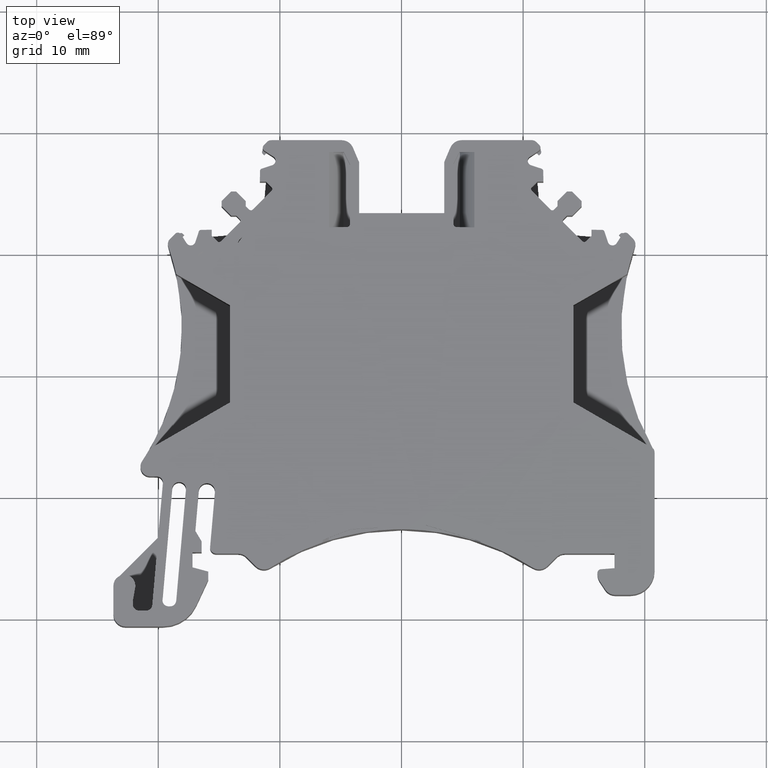
[diagram: clean part render]
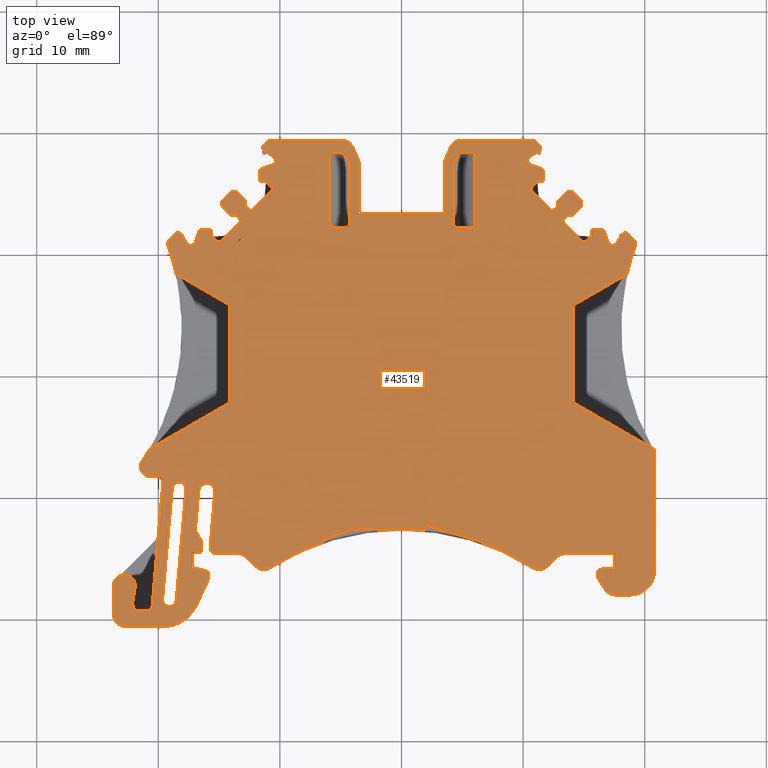
[diagram: same view with one face highlighted and labeled with its STEP entity id]
A machine part, top view. The second image highlights one B-rep face of the part: STEP entity #43519.
In plain terms, the highlighted planar face has unit normal (0, 0, 1).
Its self-contained STEP definition (entity closure, byte-faithful):
#404=CIRCLE('',#43734,0.5);
#405=CIRCLE('',#43741,1.2999966732);
#604=CIRCLE('',#45783,0.200000000126);
#606=CIRCLE('',#45788,1.);
#608=CIRCLE('',#45792,0.2);
#610=CIRCLE('',#45796,0.4000000001);
#611=CIRCLE('',#45799,0.2);
#614=CIRCLE('',#45807,0.2);
#616=CIRCLE('',#45819,0.2);
#618=CIRCLE('',#45824,0.200000000126);
#619=CIRCLE('',#45830,0.2);
#622=CIRCLE('',#45835,0.4000000001);
#628=CIRCLE('',#45849,0.3);
#631=CIRCLE('',#45854,0.5);
#637=CIRCLE('',#45867,1.);
#639=CIRCLE('',#45871,1.);
#641=CIRCLE('',#45877,0.3);
#643=CIRCLE('',#45881,1.);
#645=CIRCLE('',#45885,1.);
#647=CIRCLE('',#45889,2.);
#649=CIRCLE('',#45893,0.6);
#652=CIRCLE('',#45898,0.3);
#656=CIRCLE('',#45904,0.6);
#658=CIRCLE('',#45907,20.);
#667=CIRCLE('',#45933,1.);
#669=CIRCLE('',#45937,0.5);
#670=CIRCLE('',#45940,0.3);
#678=CIRCLE('',#45956,0.4000000001);
#679=CIRCLE('',#45959,0.2);
#682=CIRCLE('',#45967,0.2);
#684=CIRCLE('',#45979,0.2);
#686=CIRCLE('',#45984,0.2);
#687=CIRCLE('',#45990,0.2);
#690=CIRCLE('',#45995,0.4000000001);
#696=CIRCLE('',#46009,0.3);
#699=CIRCLE('',#46014,0.6);
#701=CIRCLE('',#46017,20.);
#702=CIRCLE('',#46018,20.);
#704=CIRCLE('',#46021,0.8);
#706=CIRCLE('',#46025,0.5);
#711=CIRCLE('',#46033,0.3);
#712=CIRCLE('',#46036,0.5);
#713=CIRCLE('',#46039,0.5);
#714=CIRCLE('',#46043,0.9);
#717=CIRCLE('',#46048,1.);
#719=CIRCLE('',#46052,3.);
#721=CIRCLE('',#46063,0.6688487148448);
#723=CIRCLE('',#46067,0.5);
#725=CIRCLE('',#46071,1.);
#727=CIRCLE('',#46075,1.);
#729=CIRCLE('',#46078,20.);
#730=CIRCLE('',#46079,20.);
#731=CIRCLE('',#46080,20.);
#733=CIRCLE('',#46084,0.5686839344726);
#735=CIRCLE('',#46088,0.5);
#737=CIRCLE('',#46092,0.5);
#741=CIRCLE('',#46102,0.3);
#745=CIRCLE('',#46113,0.3);
#12529=ORIENTED_EDGE('',*,*,#19374,.T.);
#12530=ORIENTED_EDGE('',*,*,#13500,.T.);
#12531=ORIENTED_EDGE('',*,*,#19318,.T.);
#12532=ORIENTED_EDGE('',*,*,#13504,.T.);
#12533=ORIENTED_EDGE('',*,*,#19375,.T.);
#12534=ORIENTED_EDGE('',*,*,#13394,.T.);
#12535=ORIENTED_EDGE('',*,*,#19317,.T.);
#12536=ORIENTED_EDGE('',*,*,#18976,.T.);
#12537=ORIENTED_EDGE('',*,*,#18979,.T.);
#12538=ORIENTED_EDGE('',*,*,#18982,.T.);
#12539=ORIENTED_EDGE('',*,*,#18985,.T.);
#12540=ORIENTED_EDGE('',*,*,#18988,.T.);
#12541=ORIENTED_EDGE('',*,*,#18991,.T.);
#12542=ORIENTED_EDGE('',*,*,#18994,.T.);
#12543=ORIENTED_EDGE('',*,*,#18997,.T.);
#12544=ORIENTED_EDGE('',*,*,#19000,.T.);
#12545=ORIENTED_EDGE('',*,*,#19003,.T.);
#12546=ORIENTED_EDGE('',*,*,#19006,.T.);
#12547=ORIENTED_EDGE('',*,*,#19009,.T.);
#12548=ORIENTED_EDGE('',*,*,#19012,.T.);
#12549=ORIENTED_EDGE('',*,*,#19015,.T.);
#12550=ORIENTED_EDGE('',*,*,#19018,.T.);
#12551=ORIENTED_EDGE('',*,*,#13409,.T.);
#12552=ORIENTED_EDGE('',*,*,#19037,.T.);
#12553=ORIENTED_EDGE('',*,*,#13420,.T.);
#12554=ORIENTED_EDGE('',*,*,#19035,.T.);
#12555=ORIENTED_EDGE('',*,*,#19033,.T.);
#12556=ORIENTED_EDGE('',*,*,#19030,.T.);
#12557=ORIENTED_EDGE('',*,*,#19024,.T.);
#12558=ORIENTED_EDGE('',*,*,#19376,.T.);
#12559=ORIENTED_EDGE('',*,*,#18850,.T.);
#12560=ORIENTED_EDGE('',*,*,#18851,.T.);
#12561=ORIENTED_EDGE('',*,*,#18855,.T.);
#12562=ORIENTED_EDGE('',*,*,#18859,.T.);
#12563=ORIENTED_EDGE('',*,*,#18861,.T.);
#12564=ORIENTED_EDGE('',*,*,#18846,.T.);
#12565=ORIENTED_EDGE('',*,*,#18844,.T.);
#12566=ORIENTED_EDGE('',*,*,#18866,.T.);
#12567=ORIENTED_EDGE('',*,*,#18870,.T.);
#12568=ORIENTED_EDGE('',*,*,#18873,.T.);
#12569=ORIENTED_EDGE('',*,*,#18876,.T.);
#12570=ORIENTED_EDGE('',*,*,#18879,.T.);
#12571=ORIENTED_EDGE('',*,*,#18882,.T.);
#12572=ORIENTED_EDGE('',*,*,#18885,.T.);
#12573=ORIENTED_EDGE('',*,*,#18888,.T.);
#12574=ORIENTED_EDGE('',*,*,#18891,.T.);
#12575=ORIENTED_EDGE('',*,*,#18894,.T.);
#12576=ORIENTED_EDGE('',*,*,#18897,.T.);
#12577=ORIENTED_EDGE('',*,*,#18900,.T.);
#12578=ORIENTED_EDGE('',*,*,#18912,.T.);
#12579=ORIENTED_EDGE('',*,*,#18909,.T.);
#12580=ORIENTED_EDGE('',*,*,#18907,.T.);
#12581=ORIENTED_EDGE('',*,*,#18917,.T.);
#12582=ORIENTED_EDGE('',*,*,#18918,.T.);
#12583=ORIENTED_EDGE('',*,*,#18922,.T.);
#12584=ORIENTED_EDGE('',*,*,#18926,.T.);
#12585=ORIENTED_EDGE('',*,*,#18929,.T.);
#12586=ORIENTED_EDGE('',*,*,#18938,.T.);
#12587=ORIENTED_EDGE('',*,*,#18952,.T.);
#12588=ORIENTED_EDGE('',*,*,#18956,.T.);
#12589=ORIENTED_EDGE('',*,*,#18959,.T.);
#12590=ORIENTED_EDGE('',*,*,#18962,.F.);
#12591=ORIENTED_EDGE('',*,*,#18837,.T.);
#12592=ORIENTED_EDGE('',*,*,#18832,.T.);
#12593=ORIENTED_EDGE('',*,*,#13429,.T.);
#12594=ORIENTED_EDGE('',*,*,#19041,.T.);
#12595=ORIENTED_EDGE('',*,*,#13498,.T.);
#12596=ORIENTED_EDGE('',*,*,#19067,.T.);
#12597=ORIENTED_EDGE('',*,*,#19070,.T.);
#12598=ORIENTED_EDGE('',*,*,#19071,.F.);
#12599=ORIENTED_EDGE('',*,*,#19076,.T.);
#12600=ORIENTED_EDGE('',*,*,#19079,.T.);
#12601=ORIENTED_EDGE('',*,*,#19081,.T.);
#12602=ORIENTED_EDGE('',*,*,#19103,.T.);
#12603=ORIENTED_EDGE('',*,*,#19106,.T.);
#12604=ORIENTED_EDGE('',*,*,#19107,.T.);
#12605=ORIENTED_EDGE('',*,*,#19111,.T.);
#12606=ORIENTED_EDGE('',*,*,#19115,.T.);
#12607=ORIENTED_EDGE('',*,*,#19117,.T.);
#12608=ORIENTED_EDGE('',*,*,#18831,.T.);
#12609=ORIENTED_EDGE('',*,*,#18829,.T.);
#12610=ORIENTED_EDGE('',*,*,#19122,.T.);
#12611=ORIENTED_EDGE('',*,*,#19126,.T.);
#12612=ORIENTED_EDGE('',*,*,#19129,.T.);
#12613=ORIENTED_EDGE('',*,*,#19132,.T.);
#12614=ORIENTED_EDGE('',*,*,#19135,.T.);
#12615=ORIENTED_EDGE('',*,*,#19138,.T.);
#12616=ORIENTED_EDGE('',*,*,#19141,.T.);
#12617=ORIENTED_EDGE('',*,*,#19144,.T.);
#12618=ORIENTED_EDGE('',*,*,#19147,.T.);
#12619=ORIENTED_EDGE('',*,*,#19150,.T.);
#12620=ORIENTED_EDGE('',*,*,#19153,.T.);
#12621=ORIENTED_EDGE('',*,*,#19156,.T.);
#12622=ORIENTED_EDGE('',*,*,#19168,.T.);
#12623=ORIENTED_EDGE('',*,*,#19165,.T.);
#12624=ORIENTED_EDGE('',*,*,#19163,.T.);
#12625=ORIENTED_EDGE('',*,*,#19173,.T.);
#12626=ORIENTED_EDGE('',*,*,#19174,.T.);
#12627=ORIENTED_EDGE('',*,*,#19178,.T.);
#12628=ORIENTED_EDGE('',*,*,#19182,.T.);
#12629=ORIENTED_EDGE('',*,*,#19185,.T.);
#12630=ORIENTED_EDGE('',*,*,#19194,.T.);
#12631=ORIENTED_EDGE('',*,*,#19208,.T.);
#12632=ORIENTED_EDGE('',*,*,#19212,.T.);
#12633=ORIENTED_EDGE('',*,*,#19215,.T.);
#12634=ORIENTED_EDGE('',*,*,#19219,.T.);
#12635=ORIENTED_EDGE('',*,*,#13468,.T.);
#12636=ORIENTED_EDGE('',*,*,#19064,.F.);
#12637=ORIENTED_EDGE('',*,*,#19060,.T.);
#12638=ORIENTED_EDGE('',*,*,#19218,.T.);
#12639=ORIENTED_EDGE('',*,*,#19222,.T.);
#12640=ORIENTED_EDGE('',*,*,#19225,.T.);
#12641=ORIENTED_EDGE('',*,*,#19228,.T.);
#12642=ORIENTED_EDGE('',*,*,#19253,.T.);
#12643=ORIENTED_EDGE('',*,*,#19250,.T.);
#12644=ORIENTED_EDGE('',*,*,#19248,.T.);
#12645=ORIENTED_EDGE('',*,*,#19246,.T.);
#12646=ORIENTED_EDGE('',*,*,#19244,.T.);
#12647=ORIENTED_EDGE('',*,*,#19242,.T.);
#12648=ORIENTED_EDGE('',*,*,#19240,.T.);
#12649=ORIENTED_EDGE('',*,*,#19257,.T.);
#12650=ORIENTED_EDGE('',*,*,#19261,.T.);
#12651=ORIENTED_EDGE('',*,*,#19264,.T.);
#12652=ORIENTED_EDGE('',*,*,#19267,.T.);
#12653=ORIENTED_EDGE('',*,*,#19270,.T.);
#12654=ORIENTED_EDGE('',*,*,#19273,.T.);
#12655=ORIENTED_EDGE('',*,*,#19276,.T.);
#12656=ORIENTED_EDGE('',*,*,#19279,.T.);
#12657=ORIENTED_EDGE('',*,*,#19282,.T.);
#12658=ORIENTED_EDGE('',*,*,#19285,.T.);
#12659=ORIENTED_EDGE('',*,*,#19288,.T.);
#12660=ORIENTED_EDGE('',*,*,#19291,.T.);
#12661=ORIENTED_EDGE('',*,*,#19294,.T.);
#12662=ORIENTED_EDGE('',*,*,#19297,.T.);
#12663=ORIENTED_EDGE('',*,*,#19300,.T.);
#12664=ORIENTED_EDGE('',*,*,#19303,.T.);
#12665=ORIENTED_EDGE('',*,*,#19306,.T.);
#12666=ORIENTED_EDGE('',*,*,#19309,.T.);
#12667=ORIENTED_EDGE('',*,*,#19312,.T.);
#12668=ORIENTED_EDGE('',*,*,#19315,.T.);
#12669=ORIENTED_EDGE('',*,*,#19319,.T.);
#12670=ORIENTED_EDGE('',*,*,#13479,.T.);
#12671=ORIENTED_EDGE('',*,*,#19377,.T.);
#12672=ORIENTED_EDGE('',*,*,#19378,.T.);
#12673=ORIENTED_EDGE('',*,*,#13491,.T.);
#12674=ORIENTED_EDGE('',*,*,#13486,.T.);
#12675=ORIENTED_EDGE('',*,*,#19379,.T.);
#12676=ORIENTED_EDGE('',*,*,#13509,.T.);
#12677=ORIENTED_EDGE('',*,*,#19371,.T.);
#12678=ORIENTED_EDGE('',*,*,#19369,.T.);
#12679=ORIENTED_EDGE('',*,*,#19367,.F.);
#12680=ORIENTED_EDGE('',*,*,#19366,.T.);
#12681=ORIENTED_EDGE('',*,*,#19362,.T.);
#12682=ORIENTED_EDGE('',*,*,#19373,.T.);
#12683=ORIENTED_EDGE('',*,*,#19349,.T.);
#12684=ORIENTED_EDGE('',*,*,#19347,.T.);
#12685=ORIENTED_EDGE('',*,*,#19342,.F.);
#12686=ORIENTED_EDGE('',*,*,#19338,.T.);
#12687=ORIENTED_EDGE('',*,*,#19354,.T.);
#12688=ORIENTED_EDGE('',*,*,#19355,.T.);
#12689=ORIENTED_EDGE('',*,*,#19335,.F.);
#12690=ORIENTED_EDGE('',*,*,#19332,.T.);
#12691=ORIENTED_EDGE('',*,*,#19380,.T.);
#12692=ORIENTED_EDGE('',*,*,#19325,.T.);
#12693=ORIENTED_EDGE('',*,*,#19328,.T.);
#12694=ORIENTED_EDGE('',*,*,#19337,.T.);
#13394=EDGE_CURVE('',#19547,#19548,#23668,.T.);
#13409=EDGE_CURVE('',#19562,#19561,#23677,.T.);
#13420=EDGE_CURVE('',#19571,#19570,#23688,.T.);
#13429=EDGE_CURVE('',#19578,#19577,#23697,.T.);
#13468=EDGE_CURVE('',#19611,#19610,#23732,.T.);
#13479=EDGE_CURVE('',#19619,#19618,#23743,.T.);
#13486=EDGE_CURVE('',#19625,#19623,#23748,.T.);
#13491=EDGE_CURVE('',#19627,#19625,#404,.T.);
#13498=EDGE_CURVE('',#19634,#19633,#23758,.T.);
#13500=EDGE_CURVE('',#19635,#19636,#23760,.T.);
#13504=EDGE_CURVE('',#19638,#19637,#23764,.T.);
#13509=EDGE_CURVE('',#19640,#19639,#405,.T.);
#18829=EDGE_CURVE('',#23181,#23182,#604,.T.);
#18831=EDGE_CURVE('',#23183,#23181,#28837,.T.);
#18832=EDGE_CURVE('',#23184,#19578,#28838,.T.);
#18837=EDGE_CURVE('',#23186,#23184,#606,.T.);
#18844=EDGE_CURVE('',#23192,#23193,#608,.T.);
#18846=EDGE_CURVE('',#23194,#23192,#28848,.T.);
#18850=EDGE_CURVE('',#23195,#23198,#610,.T.);
#18851=EDGE_CURVE('',#23198,#23199,#28851,.T.);
#18855=EDGE_CURVE('',#23199,#23201,#611,.T.);
#18859=EDGE_CURVE('',#23201,#23204,#28857,.T.);
#18861=EDGE_CURVE('',#23204,#23194,#28859,.T.);
#18866=EDGE_CURVE('',#23193,#23207,#28864,.T.);
#18870=EDGE_CURVE('',#23207,#23210,#614,.T.);
#18873=EDGE_CURVE('',#23210,#23212,#28869,.T.);
#18876=EDGE_CURVE('',#23212,#23214,#28872,.T.);
#18879=EDGE_CURVE('',#23214,#23216,#28875,.T.);
#18882=EDGE_CURVE('',#23216,#23218,#28878,.T.);
#18885=EDGE_CURVE('',#23218,#23220,#28881,.T.);
#18888=EDGE_CURVE('',#23220,#23222,#28884,.T.);
#18891=EDGE_CURVE('',#23222,#23224,#28887,.T.);
#18894=EDGE_CURVE('',#23224,#23226,#28890,.T.);
#18897=EDGE_CURVE('',#23226,#23228,#28893,.T.);
#18900=EDGE_CURVE('',#23228,#23230,#616,.T.);
#18907=EDGE_CURVE('',#23235,#23236,#28900,.T.);
#18909=EDGE_CURVE('',#23237,#23235,#618,.T.);
#18912=EDGE_CURVE('',#23230,#23237,#28904,.T.);
#18917=EDGE_CURVE('',#23236,#23241,#28909,.T.);
#18918=EDGE_CURVE('',#23241,#23242,#28910,.T.);
#18922=EDGE_CURVE('',#23242,#23244,#619,.T.);
#18926=EDGE_CURVE('',#23244,#23247,#28916,.T.);
#18929=EDGE_CURVE('',#23247,#23249,#622,.T.);
#18938=EDGE_CURVE('',#23249,#23257,#28923,.T.);
#18952=EDGE_CURVE('',#23257,#23265,#628,.T.);
#18956=EDGE_CURVE('',#23265,#23267,#28935,.T.);
#18959=EDGE_CURVE('',#23267,#23269,#631,.T.);
#18962=EDGE_CURVE('',#23186,#23269,#28938,.T.);
#18976=EDGE_CURVE('',#23279,#23281,#637,.T.);
#18979=EDGE_CURVE('',#23281,#23283,#28943,.T.);
#18982=EDGE_CURVE('',#23283,#23285,#639,.T.);
#18985=EDGE_CURVE('',#23285,#23287,#28947,.T.);
#18988=EDGE_CURVE('',#23287,#23289,#28950,.T.);
#18991=EDGE_CURVE('',#23289,#23291,#28952,.T.);
#18994=EDGE_CURVE('',#23291,#23293,#641,.T.);
#18997=EDGE_CURVE('',#23293,#23295,#28956,.T.);
#19000=EDGE_CURVE('',#23295,#23297,#643,.T.);
#19003=EDGE_CURVE('',#23297,#23299,#28960,.T.);
#19006=EDGE_CURVE('',#23299,#23301,#645,.T.);
#19009=EDGE_CURVE('',#23301,#23303,#28964,.T.);
#19012=EDGE_CURVE('',#23303,#23305,#647,.T.);
#19015=EDGE_CURVE('',#23305,#23307,#28968,.T.);
#19018=EDGE_CURVE('',#23307,#19562,#649,.T.);
#19024=EDGE_CURVE('',#23315,#23314,#652,.T.);
#19030=EDGE_CURVE('',#23318,#23315,#28975,.T.);
#19033=EDGE_CURVE('',#23320,#23318,#656,.T.);
#19035=EDGE_CURVE('',#19570,#23320,#658,.T.);
#19037=EDGE_CURVE('',#19561,#19571,#28977,.T.);
#19041=EDGE_CURVE('',#19577,#19634,#28981,.T.);
#19060=EDGE_CURVE('',#23333,#23332,#28985,.T.);
#19064=EDGE_CURVE('',#23333,#19610,#28989,.T.);
#19067=EDGE_CURVE('',#19633,#23336,#28992,.T.);
#19070=EDGE_CURVE('',#23336,#23338,#667,.T.);
#19071=EDGE_CURVE('',#23339,#23338,#28994,.T.);
#19076=EDGE_CURVE('',#23339,#23342,#669,.T.);
#19079=EDGE_CURVE('',#23342,#23344,#29000,.T.);
#19081=EDGE_CURVE('',#23344,#23346,#670,.T.);
#19103=EDGE_CURVE('',#23346,#23360,#29015,.T.);
#19106=EDGE_CURVE('',#23360,#23362,#678,.T.);
#19107=EDGE_CURVE('',#23362,#23363,#29017,.T.);
#19111=EDGE_CURVE('',#23363,#23365,#679,.T.);
#19115=EDGE_CURVE('',#23365,#23368,#29023,.T.);
#19117=EDGE_CURVE('',#23368,#23183,#29025,.T.);
#19122=EDGE_CURVE('',#23182,#23371,#29030,.T.);
#19126=EDGE_CURVE('',#23371,#23374,#682,.T.);
#19129=EDGE_CURVE('',#23374,#23376,#29035,.T.);
#19132=EDGE_CURVE('',#23376,#23378,#29038,.T.);
#19135=EDGE_CURVE('',#23378,#23380,#29041,.T.);
#19138=EDGE_CURVE('',#23380,#23382,#29044,.T.);
#19141=EDGE_CURVE('',#23382,#23384,#29047,.T.);
#19144=EDGE_CURVE('',#23384,#23386,#29050,.T.);
#19147=EDGE_CURVE('',#23386,#23388,#29053,.T.);
#19150=EDGE_CURVE('',#23388,#23390,#29056,.T.);
#19153=EDGE_CURVE('',#23390,#23392,#29059,.T.);
#19156=EDGE_CURVE('',#23392,#23394,#684,.T.);
#19163=EDGE_CURVE('',#23399,#23400,#29066,.T.);
#19165=EDGE_CURVE('',#23401,#23399,#686,.T.);
#19168=EDGE_CURVE('',#23394,#23401,#29070,.T.);
#19173=EDGE_CURVE('',#23400,#23405,#29075,.T.);
#19174=EDGE_CURVE('',#23405,#23406,#29076,.T.);
#19178=EDGE_CURVE('',#23406,#23408,#687,.T.);
#19182=EDGE_CURVE('',#23408,#23411,#29082,.T.);
#19185=EDGE_CURVE('',#23411,#23413,#690,.T.);
#19194=EDGE_CURVE('',#23413,#23421,#29089,.T.);
#19208=EDGE_CURVE('',#23421,#23429,#696,.T.);
#19212=EDGE_CURVE('',#23429,#23431,#29101,.T.);
#19215=EDGE_CURVE('',#23431,#23433,#699,.T.);
#19218=EDGE_CURVE('',#23332,#23435,#701,.T.);
#19219=EDGE_CURVE('',#23433,#19611,#702,.T.);
#19222=EDGE_CURVE('',#23435,#23437,#704,.T.);
#19225=EDGE_CURVE('',#23437,#23439,#29107,.T.);
#19228=EDGE_CURVE('',#23439,#23441,#706,.T.);
#19240=EDGE_CURVE('',#23451,#23452,#29116,.T.);
#19242=EDGE_CURVE('',#23453,#23451,#711,.T.);
#19244=EDGE_CURVE('',#23454,#23453,#29119,.T.);
#19246=EDGE_CURVE('',#23455,#23454,#712,.T.);
#19248=EDGE_CURVE('',#23456,#23455,#29122,.T.);
#19250=EDGE_CURVE('',#23457,#23456,#713,.T.);
#19253=EDGE_CURVE('',#23441,#23457,#29126,.T.);
#19257=EDGE_CURVE('',#23452,#23461,#714,.T.);
#19261=EDGE_CURVE('',#23461,#23463,#29132,.T.);
#19264=EDGE_CURVE('',#23463,#23465,#717,.T.);
#19267=EDGE_CURVE('',#23465,#23467,#29136,.T.);
#19270=EDGE_CURVE('',#23467,#23469,#719,.T.);
#19273=EDGE_CURVE('',#23469,#23471,#29140,.T.);
#19276=EDGE_CURVE('',#23471,#23473,#29143,.T.);
#19279=EDGE_CURVE('',#23473,#23475,#29146,.T.);
#19282=EDGE_CURVE('',#23475,#23477,#29149,.T.);
#19285=EDGE_CURVE('',#23477,#23479,#29152,.T.);
#19288=EDGE_CURVE('',#23479,#23481,#29155,.T.);
#19291=EDGE_CURVE('',#23481,#23483,#29158,.T.);
#19294=EDGE_CURVE('',#23483,#23485,#29161,.T.);
#19297=EDGE_CURVE('',#23485,#23487,#721,.T.);
#19300=EDGE_CURVE('',#23487,#23489,#29165,.T.);
#19303=EDGE_CURVE('',#23489,#23491,#723,.T.);
#19306=EDGE_CURVE('',#23491,#23493,#29169,.T.);
#19309=EDGE_CURVE('',#23493,#23495,#725,.T.);
#19312=EDGE_CURVE('',#23495,#23497,#29173,.T.);
#19315=EDGE_CURVE('',#23497,#23499,#727,.T.);
#19317=EDGE_CURVE('',#19548,#23279,#729,.T.);
#19318=EDGE_CURVE('',#19636,#19638,#730,.T.);
#19319=EDGE_CURVE('',#23499,#19619,#731,.T.);
#19325=EDGE_CURVE('',#23501,#23504,#733,.T.);
#19328=EDGE_CURVE('',#23504,#23506,#29181,.T.);
#19332=EDGE_CURVE('',#23507,#23510,#735,.T.);
#19335=EDGE_CURVE('',#23507,#23512,#29186,.T.);
#19337=EDGE_CURVE('',#23506,#23512,#737,.T.);
#19338=EDGE_CURVE('',#23513,#23514,#29187,.T.);
#19342=EDGE_CURVE('',#23513,#23517,#29190,.T.);
#19347=EDGE_CURVE('',#23520,#23517,#29194,.T.);
#19349=EDGE_CURVE('',#23522,#23520,#29196,.T.);
#19354=EDGE_CURVE('',#23514,#23524,#741,.T.);
#19355=EDGE_CURVE('',#23524,#23522,#29200,.T.);
#19362=EDGE_CURVE('',#23531,#23532,#29206,.T.);
#19366=EDGE_CURVE('',#23533,#23531,#29209,.T.);
#19367=EDGE_CURVE('',#23533,#23534,#29210,.T.);
#19369=EDGE_CURVE('',#23535,#23534,#29211,.T.);
#19371=EDGE_CURVE('',#23536,#23535,#745,.T.);
#19373=EDGE_CURVE('',#23532,#23536,#29214,.T.);
#19374=EDGE_CURVE('',#23537,#19635,#29215,.T.);
#19375=EDGE_CURVE('',#19637,#19547,#29216,.T.);
#19376=EDGE_CURVE('',#23314,#23195,#29217,.T.);
#19377=EDGE_CURVE('',#19618,#23537,#29218,.T.);
#19378=EDGE_CURVE('',#19623,#19627,#29219,.T.);
#19379=EDGE_CURVE('',#19639,#19640,#29220,.T.);
#19380=EDGE_CURVE('',#23510,#23501,#29221,.T.);
#19547=VERTEX_POINT('',#57489);
#19548=VERTEX_POINT('',#57490);
#19561=VERTEX_POINT('',#57526);
#19562=VERTEX_POINT('',#57528);
#19570=VERTEX_POINT('',#57548);
#19571=VERTEX_POINT('',#57550);
#19577=VERTEX_POINT('',#57566);
#19578=VERTEX_POINT('',#57568);
#19610=VERTEX_POINT('',#57653);
#19611=VERTEX_POINT('',#57655);
#19618=VERTEX_POINT('',#57675);
#19619=VERTEX_POINT('',#57677);
#19623=VERTEX_POINT('',#57689);
#19625=VERTEX_POINT('',#57692);
#19627=VERTEX_POINT('',#57698);
#19633=VERTEX_POINT('',#57714);
#19634=VERTEX_POINT('',#57716);
#19635=VERTEX_POINT('',#57720);
#19636=VERTEX_POINT('',#57721);
#19637=VERTEX_POINT('',#57726);
#19638=VERTEX_POINT('',#57728);
#19639=VERTEX_POINT('',#57738);
#19640=VERTEX_POINT('',#57739);
#23181=VERTEX_POINT('',#68651);
#23182=VERTEX_POINT('',#68653);
#23183=VERTEX_POINT('',#68657);
#23184=VERTEX_POINT('',#68661);
#23186=VERTEX_POINT('',#68667);
#23192=VERTEX_POINT('',#68682);
#23193=VERTEX_POINT('',#68684);
#23194=VERTEX_POINT('',#68688);
#23195=VERTEX_POINT('',#68692);
#23198=VERTEX_POINT('',#68697);
#23199=VERTEX_POINT('',#68701);
#23201=VERTEX_POINT('',#68707);
#23204=VERTEX_POINT('',#68715);
#23207=VERTEX_POINT('',#68728);
#23210=VERTEX_POINT('',#68736);
#23212=VERTEX_POINT('',#68742);
#23214=VERTEX_POINT('',#68748);
#23216=VERTEX_POINT('',#68754);
#23218=VERTEX_POINT('',#68760);
#23220=VERTEX_POINT('',#68766);
#23222=VERTEX_POINT('',#68772);
#23224=VERTEX_POINT('',#68778);
#23226=VERTEX_POINT('',#68784);
#23228=VERTEX_POINT('',#68790);
#23230=VERTEX_POINT('',#68796);
#23235=VERTEX_POINT('',#68809);
#23236=VERTEX_POINT('',#68811);
#23237=VERTEX_POINT('',#68815);
#23241=VERTEX_POINT('',#68830);
#23242=VERTEX_POINT('',#68834);
#23244=VERTEX_POINT('',#68840);
#23247=VERTEX_POINT('',#68848);
#23249=VERTEX_POINT('',#68854);
#23257=VERTEX_POINT('',#68873);
#23265=VERTEX_POINT('',#68907);
#23267=VERTEX_POINT('',#68914);
#23269=VERTEX_POINT('',#68920);
#23279=VERTEX_POINT('',#68969);
#23281=VERTEX_POINT('',#68973);
#23283=VERTEX_POINT('',#68979);
#23285=VERTEX_POINT('',#68985);
#23287=VERTEX_POINT('',#68991);
#23289=VERTEX_POINT('',#68997);
#23291=VERTEX_POINT('',#69006);
#23293=VERTEX_POINT('',#69012);
#23295=VERTEX_POINT('',#69018);
#23297=VERTEX_POINT('',#69024);
#23299=VERTEX_POINT('',#69030);
#23301=VERTEX_POINT('',#69036);
#23303=VERTEX_POINT('',#69042);
#23305=VERTEX_POINT('',#69048);
#23307=VERTEX_POINT('',#69054);
#23314=VERTEX_POINT('',#69079);
#23315=VERTEX_POINT('',#69081);
#23318=VERTEX_POINT('',#69089);
#23320=VERTEX_POINT('',#69095);
#23332=VERTEX_POINT('',#69172);
#23333=VERTEX_POINT('',#69174);
#23336=VERTEX_POINT('',#69186);
#23338=VERTEX_POINT('',#69192);
#23339=VERTEX_POINT('',#69196);
#23342=VERTEX_POINT('',#69204);
#23344=VERTEX_POINT('',#69210);
#23346=VERTEX_POINT('',#69215);
#23360=VERTEX_POINT('',#69267);
#23362=VERTEX_POINT('',#69273);
#23363=VERTEX_POINT('',#69277);
#23365=VERTEX_POINT('',#69283);
#23368=VERTEX_POINT('',#69291);
#23371=VERTEX_POINT('',#69304);
#23374=VERTEX_POINT('',#69312);
#23376=VERTEX_POINT('',#69318);
#23378=VERTEX_POINT('',#69324);
#23380=VERTEX_POINT('',#69330);
#23382=VERTEX_POINT('',#69336);
#23384=VERTEX_POINT('',#69342);
#23386=VERTEX_POINT('',#69348);
#23388=VERTEX_POINT('',#69354);
#23390=VERTEX_POINT('',#69360);
#23392=VERTEX_POINT('',#69366);
#23394=VERTEX_POINT('',#69372);
#23399=VERTEX_POINT('',#69385);
#23400=VERTEX_POINT('',#69387);
#23401=VERTEX_POINT('',#69391);
#23405=VERTEX_POINT('',#69406);
#23406=VERTEX_POINT('',#69410);
#23408=VERTEX_POINT('',#69416);
#23411=VERTEX_POINT('',#69424);
#23413=VERTEX_POINT('',#69430);
#23421=VERTEX_POINT('',#69449);
#23429=VERTEX_POINT('',#69483);
#23431=VERTEX_POINT('',#69490);
#23433=VERTEX_POINT('',#69496);
#23435=VERTEX_POINT('',#69502);
#23437=VERTEX_POINT('',#69509);
#23439=VERTEX_POINT('',#69515);
#23441=VERTEX_POINT('',#69521);
#23451=VERTEX_POINT('',#69544);
#23452=VERTEX_POINT('',#69546);
#23453=VERTEX_POINT('',#69550);
#23454=VERTEX_POINT('',#69554);
#23455=VERTEX_POINT('',#69558);
#23456=VERTEX_POINT('',#69562);
#23457=VERTEX_POINT('',#69566);
#23461=VERTEX_POINT('',#69580);
#23463=VERTEX_POINT('',#69587);
#23465=VERTEX_POINT('',#69593);
#23467=VERTEX_POINT('',#69599);
#23469=VERTEX_POINT('',#69605);
#23471=VERTEX_POINT('',#69611);
#23473=VERTEX_POINT('',#69617);
#23475=VERTEX_POINT('',#69623);
#23477=VERTEX_POINT('',#69629);
#23479=VERTEX_POINT('',#69635);
#23481=VERTEX_POINT('',#69641);
#23483=VERTEX_POINT('',#69647);
#23485=VERTEX_POINT('',#69653);
#23487=VERTEX_POINT('',#69659);
#23489=VERTEX_POINT('',#69665);
#23491=VERTEX_POINT('',#69671);
#23493=VERTEX_POINT('',#69677);
#23495=VERTEX_POINT('',#69683);
#23497=VERTEX_POINT('',#69689);
#23499=VERTEX_POINT('',#69695);
#23501=VERTEX_POINT('',#69708);
#23504=VERTEX_POINT('',#69713);
#23506=VERTEX_POINT('',#69719);
#23507=VERTEX_POINT('',#69723);
#23510=VERTEX_POINT('',#69728);
#23512=VERTEX_POINT('',#69733);
#23513=VERTEX_POINT('',#69741);
#23514=VERTEX_POINT('',#69742);
#23517=VERTEX_POINT('',#69750);
#23520=VERTEX_POINT('',#69757);
#23522=VERTEX_POINT('',#69764);
#23524=VERTEX_POINT('',#69772);
#23531=VERTEX_POINT('',#69791);
#23532=VERTEX_POINT('',#69792);
#23533=VERTEX_POINT('',#69797);
#23534=VERTEX_POINT('',#69801);
#23535=VERTEX_POINT('',#69805);
#23536=VERTEX_POINT('',#69809);
#23537=VERTEX_POINT('',#69815);
#23668=LINE('',#57488,#29362);
#23677=LINE('',#57527,#29371);
#23688=LINE('',#57549,#29382);
#23697=LINE('',#57567,#29391);
#23732=LINE('',#57654,#29426);
#23743=LINE('',#57676,#29437);
#23748=LINE('',#57691,#29442);
#23758=LINE('',#57715,#29452);
#23760=LINE('',#57719,#29454);
#23764=LINE('',#57727,#29458);
#28837=LINE('',#68658,#34531);
#28838=LINE('',#68660,#34532);
#28848=LINE('',#68689,#34542);
#28851=LINE('',#68700,#34545);
#28857=LINE('',#68716,#34551);
#28859=LINE('',#68720,#34553);
#28864=LINE('',#68730,#34558);
#28869=LINE('',#68743,#34563);
#28872=LINE('',#68749,#34566);
#28875=LINE('',#68755,#34569);
#28878=LINE('',#68761,#34572);
#28881=LINE('',#68767,#34575);
#28884=LINE('',#68773,#34578);
#28887=LINE('',#68779,#34581);
#28890=LINE('',#68785,#34584);
#28893=LINE('',#68791,#34587);
#28900=LINE('',#68812,#34594);
#28904=LINE('',#68821,#34598);
#28909=LINE('',#68831,#34603);
#28910=LINE('',#68833,#34604);
#28916=LINE('',#68849,#34610);
#28923=LINE('',#68874,#34617);
#28935=LINE('',#68915,#34629);
#28938=LINE('',#68926,#34632);
#28943=LINE('',#68980,#34637);
#28947=LINE('',#68992,#34641);
#28950=LINE('',#68998,#34644);
#28952=LINE('',#69007,#34646);
#28956=LINE('',#69019,#34650);
#28960=LINE('',#69031,#34654);
#28964=LINE('',#69043,#34658);
#28968=LINE('',#69055,#34662);
#28975=LINE('',#69091,#34669);
#28977=LINE('',#69104,#34671);
#28981=LINE('',#69110,#34675);
#28985=LINE('',#69173,#34679);
#28989=LINE('',#69181,#34683);
#28992=LINE('',#69187,#34686);
#28994=LINE('',#69195,#34688);
#29000=LINE('',#69211,#34694);
#29015=LINE('',#69268,#34709);
#29017=LINE('',#69276,#34711);
#29023=LINE('',#69292,#34717);
#29025=LINE('',#69296,#34719);
#29030=LINE('',#69306,#34724);
#29035=LINE('',#69319,#34729);
#29038=LINE('',#69325,#34732);
#29041=LINE('',#69331,#34735);
#29044=LINE('',#69337,#34738);
#29047=LINE('',#69343,#34741);
#29050=LINE('',#69349,#34744);
#29053=LINE('',#69355,#34747);
#29056=LINE('',#69361,#34750);
#29059=LINE('',#69367,#34753);
#29066=LINE('',#69388,#34760);
#29070=LINE('',#69397,#34764);
#29075=LINE('',#69407,#34769);
#29076=LINE('',#69409,#34770);
#29082=LINE('',#69425,#34776);
#29089=LINE('',#69450,#34783);
#29101=LINE('',#69491,#34795);
#29107=LINE('',#69516,#34801);
#29116=LINE('',#69547,#34810);
#29119=LINE('',#69555,#34813);
#29122=LINE('',#69563,#34816);
#29126=LINE('',#69572,#34820);
#29132=LINE('',#69588,#34826);
#29136=LINE('',#69600,#34830);
#29140=LINE('',#69612,#34834);
#29143=LINE('',#69618,#34837);
#29146=LINE('',#69624,#34840);
#29149=LINE('',#69630,#34843);
#29152=LINE('',#69636,#34846);
#29155=LINE('',#69642,#34849);
#29158=LINE('',#69648,#34852);
#29161=LINE('',#69654,#34855);
#29165=LINE('',#69666,#34859);
#29169=LINE('',#69678,#34863);
#29173=LINE('',#69690,#34867);
#29181=LINE('',#69720,#34875);
#29186=LINE('',#69735,#34880);
#29187=LINE('',#69740,#34881);
#29190=LINE('',#69749,#34884);
#29194=LINE('',#69759,#34888);
#29196=LINE('',#69763,#34890);
#29200=LINE('',#69775,#34894);
#29206=LINE('',#69790,#34900);
#29209=LINE('',#69798,#34903);
#29210=LINE('',#69800,#34904);
#29211=LINE('',#69804,#34905);
#29214=LINE('',#69812,#34908);
#29215=LINE('',#69814,#34909);
#29216=LINE('',#69816,#34910);
#29217=LINE('',#69817,#34911);
#29218=LINE('',#69818,#34912);
#29219=LINE('',#69819,#34913);
#29220=LINE('',#69820,#34914);
#29221=LINE('',#69821,#34915);
#29362=VECTOR('',#46550,1000.);
#29371=VECTOR('',#46573,1000.);
#29382=VECTOR('',#46588,1000.);
#29391=VECTOR('',#46601,1000.);
#29426=VECTOR('',#46658,1000.);
#29437=VECTOR('',#46675,1000.);
#29442=VECTOR('',#46688,1000.);
#29452=VECTOR('',#46708,1000.);
#29454=VECTOR('',#46712,1000.);
#29458=VECTOR('',#46718,1000.);
#34531=VECTOR('',#55883,1000.);
#34532=VECTOR('',#55886,1000.);
#34542=VECTOR('',#55912,1000.);
#34545=VECTOR('',#55923,1000.);
#34551=VECTOR('',#55937,1000.);
#34553=VECTOR('',#55941,1000.);
#34558=VECTOR('',#55950,1000.);
#34563=VECTOR('',#55963,1000.);
#34566=VECTOR('',#55968,1000.);
#34569=VECTOR('',#55973,1000.);
#34572=VECTOR('',#55978,1000.);
#34575=VECTOR('',#55983,1000.);
#34578=VECTOR('',#55988,1000.);
#34581=VECTOR('',#55993,1000.);
#34584=VECTOR('',#55998,1000.);
#34587=VECTOR('',#56003,1000.);
#34594=VECTOR('',#56022,1000.);
#34598=VECTOR('',#56032,1000.);
#34603=VECTOR('',#56041,1000.);
#34604=VECTOR('',#56044,1000.);
#34610=VECTOR('',#56058,1000.);
#34617=VECTOR('',#56081,1000.);
#34629=VECTOR('',#56115,1000.);
#34632=VECTOR('',#56128,1000.);
#34637=VECTOR('',#56157,1000.);
#34641=VECTOR('',#56169,1000.);
#34644=VECTOR('',#56174,1000.);
#34646=VECTOR('',#56178,1000.);
#34650=VECTOR('',#56190,1000.);
#34654=VECTOR('',#56202,1000.);
#34658=VECTOR('',#56214,1000.);
#34662=VECTOR('',#56226,1000.);
#34669=VECTOR('',#56255,1000.);
#34671=VECTOR('',#56275,1000.);
#34675=VECTOR('',#56283,1000.);
#34679=VECTOR('',#56317,1000.);
#34683=VECTOR('',#56325,1000.);
#34686=VECTOR('',#56330,1000.);
#34688=VECTOR('',#56340,1000.);
#34694=VECTOR('',#56354,1000.);
#34709=VECTOR('',#56399,1000.);
#34711=VECTOR('',#56409,1000.);
#34717=VECTOR('',#56423,1000.);
#34719=VECTOR('',#56427,1000.);
#34724=VECTOR('',#56436,1000.);
#34729=VECTOR('',#56449,1000.);
#34732=VECTOR('',#56454,1000.);
#34735=VECTOR('',#56459,1000.);
#34738=VECTOR('',#56464,1000.);
#34741=VECTOR('',#56469,1000.);
#34744=VECTOR('',#56474,1000.);
#34747=VECTOR('',#56479,1000.);
#34750=VECTOR('',#56484,1000.);
#34753=VECTOR('',#56489,1000.);
#34760=VECTOR('',#56508,1000.);
#34764=VECTOR('',#56518,1000.);
#34769=VECTOR('',#56527,1000.);
#34770=VECTOR('',#56530,1000.);
#34776=VECTOR('',#56544,1000.);
#34783=VECTOR('',#56567,1000.);
#34795=VECTOR('',#56601,1000.);
#34801=VECTOR('',#56629,1000.);
#34810=VECTOR('',#56656,1000.);
#34813=VECTOR('',#56665,1000.);
#34816=VECTOR('',#56674,1000.);
#34820=VECTOR('',#56684,1000.);
#34826=VECTOR('',#56700,1000.);
#34830=VECTOR('',#56712,1000.);
#34834=VECTOR('',#56724,1000.);
#34837=VECTOR('',#56729,1000.);
#34840=VECTOR('',#56734,1000.);
#34843=VECTOR('',#56739,1000.);
#34846=VECTOR('',#56744,1000.);
#34849=VECTOR('',#56749,1000.);
#34852=VECTOR('',#56754,1000.);
#34855=VECTOR('',#56759,1000.);
#34859=VECTOR('',#56771,1000.);
#34863=VECTOR('',#56783,1000.);
#34867=VECTOR('',#56795,1000.);
#34875=VECTOR('',#56829,1000.);
#34880=VECTOR('',#56842,1000.);
#34881=VECTOR('',#56851,1000.);
#34884=VECTOR('',#56858,1000.);
#34888=VECTOR('',#56866,1000.);
#34890=VECTOR('',#56870,1000.);
#34894=VECTOR('',#56884,1000.);
#34900=VECTOR('',#56896,1000.);
#34903=VECTOR('',#56903,1000.);
#34904=VECTOR('',#56906,1000.);
#34905=VECTOR('',#56911,1000.);
#34908=VECTOR('',#56920,1000.);
#34909=VECTOR('',#56923,1000.);
#34910=VECTOR('',#56924,1000.);
#34911=VECTOR('',#56925,1000.);
#34912=VECTOR('',#56926,1000.);
#34913=VECTOR('',#56927,1000.);
#34914=VECTOR('',#56928,1000.);
#34915=VECTOR('',#56929,1000.);
#37130=EDGE_LOOP('',(#12529,#12530,#12531,#12532,#12533,#12534,#12535,#12536,
#12537,#12538,#12539,#12540,#12541,#12542,#12543,#12544,#12545,#12546,#12547,
#12548,#12549,#12550,#12551,#12552,#12553,#12554,#12555,#12556,#12557,#12558,
#12559,#12560,#12561,#12562,#12563,#12564,#12565,#12566,#12567,#12568,#12569,
#12570,#12571,#12572,#12573,#12574,#12575,#12576,#12577,#12578,#12579,#12580,
#12581,#12582,#12583,#12584,#12585,#12586,#12587,#12588,#12589,#12590,#12591,
#12592,#12593,#12594,#12595,#12596,#12597,#12598,#12599,#12600,#12601,#12602,
#12603,#12604,#12605,#12606,#12607,#12608,#12609,#12610,#12611,#12612,#12613,
#12614,#12615,#12616,#12617,#12618,#12619,#12620,#12621,#12622,#12623,#12624,
#12625,#12626,#12627,#12628,#12629,#12630,#12631,#12632,#12633,#12634,#12635,
#12636,#12637,#12638,#12639,#12640,#12641,#12642,#12643,#12644,#12645,#12646,
#12647,#12648,#12649,#12650,#12651,#12652,#12653,#12654,#12655,#12656,#12657,
#12658,#12659,#12660,#12661,#12662,#12663,#12664,#12665,#12666,#12667,#12668,
#12669,#12670,#12671));
#37131=EDGE_LOOP('',(#12672,#12673,#12674));
#37132=EDGE_LOOP('',(#12675,#12676));
#37133=EDGE_LOOP('',(#12677,#12678,#12679,#12680,#12681,#12682));
#37134=EDGE_LOOP('',(#12683,#12684,#12685,#12686,#12687,#12688));
#37135=EDGE_LOOP('',(#12689,#12690,#12691,#12692,#12693,#12694));
#39386=FACE_BOUND('',#37130,.T.);
#39387=FACE_BOUND('',#37131,.T.);
#39388=FACE_BOUND('',#37132,.T.);
#39389=FACE_BOUND('',#37133,.T.);
#39390=FACE_BOUND('',#37134,.T.);
#39391=FACE_BOUND('',#37135,.T.);
#41356=PLANE('',#46115);
#43519=ADVANCED_FACE('',(#39386,#39387,#39388,#39389,#39390,#39391),#41356,
 .T.);
#43734=AXIS2_PLACEMENT_3D('',#57701,#46696,#46697);
#43741=AXIS2_PLACEMENT_3D('',#57740,#46726,#46727);
#45783=AXIS2_PLACEMENT_3D('',#68654,#55878,#55879);
#45788=AXIS2_PLACEMENT_3D('',#68670,#55894,#55895);
#45792=AXIS2_PLACEMENT_3D('',#68685,#55907,#55908);
#45796=AXIS2_PLACEMENT_3D('',#68698,#55919,#55920);
#45799=AXIS2_PLACEMENT_3D('',#68709,#55929,#55930);
#45807=AXIS2_PLACEMENT_3D('',#68737,#55957,#55958);
#45819=AXIS2_PLACEMENT_3D('',#68797,#56009,#56010);
#45824=AXIS2_PLACEMENT_3D('',#68816,#56026,#56027);
#45830=AXIS2_PLACEMENT_3D('',#68842,#56050,#56051);
#45835=AXIS2_PLACEMENT_3D('',#68855,#56064,#56065);
#45849=AXIS2_PLACEMENT_3D('',#68908,#56107,#56108);
#45854=AXIS2_PLACEMENT_3D('',#68921,#56121,#56122);
#45867=AXIS2_PLACEMENT_3D('',#68974,#56151,#56152);
#45871=AXIS2_PLACEMENT_3D('',#68986,#56163,#56164);
#45877=AXIS2_PLACEMENT_3D('',#69013,#56184,#56185);
#45881=AXIS2_PLACEMENT_3D('',#69025,#56196,#56197);
#45885=AXIS2_PLACEMENT_3D('',#69037,#56208,#56209);
#45889=AXIS2_PLACEMENT_3D('',#69049,#56220,#56221);
#45893=AXIS2_PLACEMENT_3D('',#69060,#56232,#56233);
#45898=AXIS2_PLACEMENT_3D('',#69080,#56244,#56245);
#45904=AXIS2_PLACEMENT_3D('',#69097,#56261,#56262);
#45907=AXIS2_PLACEMENT_3D('',#69100,#56267,#56268);
#45933=AXIS2_PLACEMENT_3D('',#69193,#56336,#56337);
#45937=AXIS2_PLACEMENT_3D('',#69205,#56348,#56349);
#45940=AXIS2_PLACEMENT_3D('',#69216,#56358,#56359);
#45956=AXIS2_PLACEMENT_3D('',#69274,#56405,#56406);
#45959=AXIS2_PLACEMENT_3D('',#69285,#56415,#56416);
#45967=AXIS2_PLACEMENT_3D('',#69313,#56443,#56444);
#45979=AXIS2_PLACEMENT_3D('',#69373,#56495,#56496);
#45984=AXIS2_PLACEMENT_3D('',#69392,#56512,#56513);
#45990=AXIS2_PLACEMENT_3D('',#69418,#56536,#56537);
#45995=AXIS2_PLACEMENT_3D('',#69431,#56550,#56551);
#46009=AXIS2_PLACEMENT_3D('',#69484,#56593,#56594);
#46014=AXIS2_PLACEMENT_3D('',#69497,#56607,#56608);
#46017=AXIS2_PLACEMENT_3D('',#69503,#56614,#56615);
#46018=AXIS2_PLACEMENT_3D('',#69504,#56616,#56617);
#46021=AXIS2_PLACEMENT_3D('',#69510,#56623,#56624);
#46025=AXIS2_PLACEMENT_3D('',#69522,#56635,#56636);
#46033=AXIS2_PLACEMENT_3D('',#69551,#56660,#56661);
#46036=AXIS2_PLACEMENT_3D('',#69559,#56669,#56670);
#46039=AXIS2_PLACEMENT_3D('',#69567,#56678,#56679);
#46043=AXIS2_PLACEMENT_3D('',#69581,#56692,#56693);
#46048=AXIS2_PLACEMENT_3D('',#69594,#56706,#56707);
#46052=AXIS2_PLACEMENT_3D('',#69606,#56718,#56719);
#46063=AXIS2_PLACEMENT_3D('',#69660,#56765,#56766);
#46067=AXIS2_PLACEMENT_3D('',#69672,#56777,#56778);
#46071=AXIS2_PLACEMENT_3D('',#69684,#56789,#56790);
#46075=AXIS2_PLACEMENT_3D('',#69696,#56801,#56802);
#46078=AXIS2_PLACEMENT_3D('',#69699,#56807,#56808);
#46079=AXIS2_PLACEMENT_3D('',#69700,#56809,#56810);
#46080=AXIS2_PLACEMENT_3D('',#69701,#56811,#56812);
#46084=AXIS2_PLACEMENT_3D('',#69714,#56823,#56824);
#46088=AXIS2_PLACEMENT_3D('',#69729,#56836,#56837);
#46092=AXIS2_PLACEMENT_3D('',#69738,#56847,#56848);
#46102=AXIS2_PLACEMENT_3D('',#69773,#56880,#56881);
#46113=AXIS2_PLACEMENT_3D('',#69808,#56915,#56916);
#46115=AXIS2_PLACEMENT_3D('',#69813,#56921,#56922);
#46550=DIRECTION('',(-1.010781854758E-14,-1.,0.));
#46573=DIRECTION('',(-0.866025345749701,0.500000100519101,0.));
#46588=DIRECTION('',(0.866025403784386,0.500000000000092,0.));
#46601=DIRECTION('',(-2.155022129216E-13,-1.,0.));
#46658=DIRECTION('',(0.866025403784026,-0.500000000000715,0.));
#46675=DIRECTION('',(-6.235604611103E-14,1.,0.));
#46688=DIRECTION('',(0.707106781207498,0.707106781165598,0.));
#46696=DIRECTION('',(0.,0.,-1.));
#46697=DIRECTION('',(-0.844498965001488,-0.535557184725792,0.));
#46708=DIRECTION('',(-3.205555744488E-14,1.,0.));
#46712=DIRECTION('',(-9.109128694142E-14,-1.,0.));
#46718=DIRECTION('',(8.890310587936E-14,1.,0.));
#46726=DIRECTION('',(0.,0.,-1.));
#46727=DIRECTION('',(9.97911780438105E-6,-0.999999999950209,0.));
#55878=DIRECTION('',(0.,0.,-1.));
#55879=DIRECTION('',(0.707106781201898,0.707106781171198,0.));
#55883=DIRECTION('',(0.707106781116198,-0.707106781256898,0.));
#55886=DIRECTION('',(-0.390947126695192,-0.92041313774238,0.));
#55894=DIRECTION('',(0.,0.,1.));
#55895=DIRECTION('',(1.932027871021E-10,1.,0.));
#55907=DIRECTION('',(0.,0.,-1.));
#55908=DIRECTION('',(0.707106781198798,-0.707106781174298,0.));
#55912=DIRECTION('',(-0.707106781117397,-0.707106781255697,0.));
#55919=DIRECTION('',(0.,0.,-1.));
#55920=DIRECTION('',(0.840546254127626,-0.541739785018617,0.));
#55923=DIRECTION('',(-0.312299297384206,0.949983762415617,0.));
#55929=DIRECTION('',(0.,0.,1.));
#55930=DIRECTION('',(0.949983762417069,0.31229929737979,0.));
#55937=DIRECTION('',(-0.999909593712124,0.0134463527566103,0.));
#55941=DIRECTION('',(1.510123904236E-10,-1.,0.));
#55950=DIRECTION('',(-0.707106781206597,0.707106781166498,0.));
#55957=DIRECTION('',(0.,0.,-1.));
#55958=DIRECTION('',(-0.707106780566698,-0.707106781806398,0.));
#55963=DIRECTION('',(0.707106781205598,0.707106781167498,0.));
#55968=DIRECTION('',(1.,-1.063559689736E-10,0.));
#55973=DIRECTION('',(0.707106781315098,0.707106781057998,0.));
#55978=DIRECTION('',(-2.069616322944E-9,1.,0.));
#55983=DIRECTION('',(-0.707106781001998,0.707106781371098,0.));
#55988=DIRECTION('',(-1.,2.94758691476E-12,0.));
#55993=DIRECTION('',(-0.707106781063097,-0.707106781309997,0.));
#55998=DIRECTION('',(-1.854932354194E-9,-1.,0.));
#56003=DIRECTION('',(-0.707106780925398,-0.707106781447698,0.));
#56009=DIRECTION('',(0.,0.,-1.));
#56010=DIRECTION('',(0.707106785627898,-0.707106776745198,0.));
#56022=DIRECTION('',(0.707106781094898,0.707106781278198,0.));
#56026=DIRECTION('',(0.,0.,-1.));
#56027=DIRECTION('',(-0.707106782155198,-0.707106780217898,0.));
#56032=DIRECTION('',(-0.707106781186398,0.707106781186698,0.));
#56041=DIRECTION('',(1.,-4.082635155635E-9,0.));
#56044=DIRECTION('',(-0.0134843619855896,0.999909081857867,0.));
#56050=DIRECTION('',(0.,0.,1.));
#56051=DIRECTION('',(0.999909081857866,0.0134843619855995,0.));
#56058=DIRECTION('',(-0.949983762660627,0.312299296638909,0.));
#56064=DIRECTION('',(0.,0.,-1.));
#56065=DIRECTION('',(-0.312817868198508,-0.949813129692226,0.));
#56081=DIRECTION('',(0.840546256343712,0.541739781580208,0.));
#56107=DIRECTION('',(0.,0.,1.));
#56108=DIRECTION('',(0.541739782318792,-0.840546255867687,0.));
#56115=DIRECTION('',(-0.707106781271297,0.707106781101797,0.));
#56121=DIRECTION('',(0.,0.,1.));
#56122=DIRECTION('',(0.707106781180698,0.707106781192398,0.));
#56128=DIRECTION('',(1.,6.258217414171E-13,0.));
#56151=DIRECTION('',(0.,0.,1.));
#56152=DIRECTION('',(-0.538692572224018,-0.842502411053328,0.));
#56157=DIRECTION('',(0.707106781184498,0.707106781188598,0.));
#56163=DIRECTION('',(0.,0.,-1.));
#56164=DIRECTION('',(-0.707106781179297,0.707106781193797,0.));
#56169=DIRECTION('',(1.,0.,0.));
#56174=DIRECTION('',(0.,-1.,0.));
#56178=DIRECTION('',(-0.996894445471419,-0.0787493783355215,0.));
#56184=DIRECTION('',(0.,0.,1.));
#56185=DIRECTION('',(-0.1391731015305,0.990268068661401,0.));
#56190=DIRECTION('',(0.,-1.,0.));
#56196=DIRECTION('',(0.,0.,1.));
#56197=DIRECTION('',(-1.,0.,0.));
#56202=DIRECTION('',(0.548375212153103,-0.836232399932004,0.));
#56208=DIRECTION('',(0.,0.,1.));
#56209=DIRECTION('',(-0.836232399908323,-0.548375212189215,0.));
#56214=DIRECTION('',(1.,0.,0.));
#56220=DIRECTION('',(0.,0.,1.));
#56221=DIRECTION('',(4.998668146072E-12,-1.,0.));
#56226=DIRECTION('',(0.,1.,0.));
#56232=DIRECTION('',(0.,0.,1.));
#56233=DIRECTION('',(1.,1.666666804567E-11,0.));
#56244=DIRECTION('',(0.,0.,1.));
#56245=DIRECTION('',(0.707107085551182,0.707106476821782,0.));
#56255=DIRECTION('',(-0.707393578614406,0.706819867388506,0.));
#56261=DIRECTION('',(0.,0.,1.));
#56262=DIRECTION('',(0.942966521604151,-0.332887577319683,0.));
#56267=DIRECTION('',(0.,0.,-1.));
#56268=DIRECTION('',(-0.97564110568869,0.219372817118598,0.));
#56275=DIRECTION('',(3.086434406138E-14,1.,0.));
#56283=DIRECTION('',(-1.,4.821539992658E-14,0.));
#56317=DIRECTION('',(-0.866025403784386,-0.500000000000092,0.));
#56325=DIRECTION('',(0.,1.,0.));
#56330=DIRECTION('',(-0.390947126694817,0.920413137742539,0.));
#56336=DIRECTION('',(0.,0.,1.));
#56337=DIRECTION('',(0.92041313775988,0.390947126653992,0.));
#56340=DIRECTION('',(1.,-5.251994221995E-13,0.));
#56348=DIRECTION('',(0.,0.,1.));
#56349=DIRECTION('',(-2.799964704536E-10,1.,0.));
#56354=DIRECTION('',(-0.707106781271297,-0.707106781101797,0.));
#56358=DIRECTION('',(0.,0.,1.));
#56359=DIRECTION('',(-0.707106780899998,0.707106781473098,0.));
#56399=DIRECTION('',(0.840546256343787,-0.541739781580092,0.));
#56405=DIRECTION('',(0.,0.,-1.));
#56406=DIRECTION('',(0.541739780036708,0.840546257338512,0.));
#56409=DIRECTION('',(-0.949983762660529,-0.312299296639209,0.));
#56415=DIRECTION('',(0.,0.,1.));
#56416=DIRECTION('',(-0.312299296628395,0.949983762664084,0.));
#56423=DIRECTION('',(-0.0136678467800406,-0.999906590619543,0.));
#56427=DIRECTION('',(1.,1.789797736675E-9,0.));
#56436=DIRECTION('',(-0.707106781185198,-0.707106781187898,0.));
#56443=DIRECTION('',(0.,0.,-1.));
#56444=DIRECTION('',(0.707106781769598,-0.707106780603498,0.));
#56449=DIRECTION('',(-0.707106780925098,0.707106781447998,0.));
#56454=DIRECTION('',(-1.857021623902E-9,1.,0.));
#56459=DIRECTION('',(-0.707106781063097,0.707106781309997,0.));
#56464=DIRECTION('',(-1.,3.215549361563E-12,0.));
#56469=DIRECTION('',(-0.707106781003798,-0.707106781369298,0.));
#56474=DIRECTION('',(-2.071148733084E-9,-1.,0.));
#56479=DIRECTION('',(0.707106781314998,-0.707106781058098,0.));
#56484=DIRECTION('',(1.,1.076957811959E-10,0.));
#56489=DIRECTION('',(0.707106781204798,-0.707106781168298,0.));
#56495=DIRECTION('',(0.,0.,-1.));
#56496=DIRECTION('',(0.707106783052398,0.707106779320698,0.));
#56508=DIRECTION('',(-0.707106781182898,0.707106781190198,0.));
#56512=DIRECTION('',(0.,0.,-1.));
#56513=DIRECTION('',(0.707106782153897,-0.707106780219197,0.));
#56518=DIRECTION('',(-0.707106781195997,-0.707106781177097,0.));
#56527=DIRECTION('',(3.935652995926E-9,1.,0.));
#56530=DIRECTION('',(-0.999909593730608,-0.0134463513820701,0.));
#56536=DIRECTION('',(0.,0.,1.));
#56537=DIRECTION('',(-0.0134463513820801,0.999909593730608,0.));
#56544=DIRECTION('',(-0.312299297382193,-0.949983762416279,0.));
#56550=DIRECTION('',(0.,0.,-1.));
#56551=DIRECTION('',(0.949813108060204,-0.312817933880101,0.));
#56567=DIRECTION('',(-0.541739783268193,0.84054625525579,0.));
#56593=DIRECTION('',(0.,0.,1.));
#56594=DIRECTION('',(0.840546257085999,0.541739780428499,0.));
#56601=DIRECTION('',(-0.707393578613106,-0.706819867389806,0.));
#56607=DIRECTION('',(0.,0.,1.));
#56608=DIRECTION('',(-0.706819856764697,0.707393589229597,0.));
#56614=DIRECTION('',(0.,0.,-1.));
#56615=DIRECTION('',(0.866516478171469,-0.499148467950482,0.));
#56616=DIRECTION('',(0.,0.,-1.));
#56617=DIRECTION('',(0.94296652471946,0.332887568494986,0.));
#56623=DIRECTION('',(0.,0.,1.));
#56624=DIRECTION('',(-0.835030795976973,0.550203207706082,0.));
#56629=DIRECTION('',(1.,0.,0.));
#56635=DIRECTION('',(0.,0.,-1.));
#56636=DIRECTION('',(0.,1.,0.));
#56656=DIRECTION('',(0.173648177633404,0.98480775301812,0.));
#56660=DIRECTION('',(0.,0.,-1.));
#56661=DIRECTION('',(-1.,2.816668380016E-9,0.));
#56665=DIRECTION('',(0.,1.,0.));
#56669=DIRECTION('',(0.,0.,-1.));
#56670=DIRECTION('',(0.,-1.,0.));
#56674=DIRECTION('',(-1.,0.,0.));
#56678=DIRECTION('',(0.,0.,-1.));
#56679=DIRECTION('',(0.996194698105477,-0.087155742590708,0.));
#56684=DIRECTION('',(-0.0871557427364423,-0.996194698092727,0.));
#56692=DIRECTION('',(0.,0.,1.));
#56693=DIRECTION('',(0.984807753101294,-0.173648177161699,0.));
#56700=DIRECTION('',(2.832600398881E-11,-1.,0.));
#56706=DIRECTION('',(0.,0.,1.));
#56707=DIRECTION('',(-1.,5.006885572811E-9,0.));
#56712=DIRECTION('',(1.,0.,0.));
#56718=DIRECTION('',(0.,0.,1.));
#56719=DIRECTION('',(5.475205474189E-11,-1.,0.));
#56724=DIRECTION('',(0.422618261745992,0.906307787034182,0.));
#56729=DIRECTION('',(5.220738394131E-13,1.,0.));
#56734=DIRECTION('',(-0.96592582639237,0.258819044716992,0.));
#56739=DIRECTION('',(2.578182518757E-14,1.,0.));
#56744=DIRECTION('',(1.,0.,0.));
#56749=DIRECTION('',(1.578983857245E-14,1.,0.));
#56754=DIRECTION('',(-0.514495755426718,0.857492925713029,0.));
#56759=DIRECTION('',(0.0871557426244422,0.996194698102526,0.));
#56765=DIRECTION('',(0.,0.,-1.));
#56766=DIRECTION('',(-0.99619469811461,0.0871557424863209,0.));
#56771=DIRECTION('',(-0.0871557426244422,-0.996194698102526,0.));
#56777=DIRECTION('',(0.,0.,1.));
#56778=DIRECTION('',(-0.996194698165903,0.0871557419000303,0.));
#56783=DIRECTION('',(1.,0.,0.));
#56789=DIRECTION('',(0.,0.,-1.));
#56790=DIRECTION('',(0.,1.,0.));
#56795=DIRECTION('',(0.707106781184498,-0.707106781188598,0.));
#56801=DIRECTION('',(0.,0.,1.));
#56802=DIRECTION('',(-0.707106781185498,-0.707106781187598,0.));
#56807=DIRECTION('',(0.,0.,-1.));
#56808=DIRECTION('',(0.324999999999996,0.945714015968888,0.));
#56809=DIRECTION('',(0.,0.,-1.));
#56810=DIRECTION('',(-0.0969279323889867,0.995291402516266,0.));
#56811=DIRECTION('',(0.,0.,-1.));
#56812=DIRECTION('',(-0.538692571308503,0.842502411638705,0.));
#56823=DIRECTION('',(0.,0.,-1.));
#56824=DIRECTION('',(-0.996194698085713,0.0871557428166111,0.));
#56829=DIRECTION('',(-0.0871557427527699,-0.996194698091298,0.));
#56836=DIRECTION('',(0.,0.,-1.));
#56837=DIRECTION('',(3.191047426299E-11,-1.,0.));
#56842=DIRECTION('',(1.,1.288217746504E-14,0.));
#56847=DIRECTION('',(0.,0.,-1.));
#56848=DIRECTION('',(0.996194698139211,-0.0871557422051309,0.));
#56851=DIRECTION('',(-1.,0.,2.209793322194E-14));
#56858=DIRECTION('',(0.,1.,0.));
#56866=DIRECTION('',(1.,0.,-2.533835577489E-14));
#56870=DIRECTION('',(0.447213595499998,0.894427190999896,0.));
#56880=DIRECTION('',(0.,0.,-1.));
#56881=DIRECTION('',(0.,-1.,0.));
#56884=DIRECTION('',(0.,1.,0.));
#56896=DIRECTION('',(0.447213595499998,-0.894427190999896,0.));
#56903=DIRECTION('',(1.,0.,2.570033228596E-14));
#56906=DIRECTION('',(0.,-1.,0.));
#56911=DIRECTION('',(-1.,0.,-2.178669472586E-14));
#56915=DIRECTION('',(0.,0.,-1.));
#56916=DIRECTION('',(1.,2.368475785867E-14,0.));
#56920=DIRECTION('',(0.,-1.,0.));
#56921=DIRECTION('',(0.,0.,1.));
#56922=DIRECTION('',(1.,0.,0.));
#56923=DIRECTION('',(0.99832747081224,0.0578122912678289,0.));
#56924=DIRECTION('',(0.958532559314987,-0.284983039377893,0.));
#56925=DIRECTION('',(-0.54173978326838,-0.840546255255669,0.));
#56926=DIRECTION('',(0.9348364365342,0.355078634851548,0.));
#56927=DIRECTION('',(-0.577564879418011,-0.816344786265496,0.));
#56928=DIRECTION('',(-0.765824234165298,-0.643049953242463,0.));
#56929=DIRECTION('',(0.0871557427522538,0.996194698091344,0.));
#57488=CARTESIAN_POINT('',(6.5,-2.681270915454,2.5));
#57489=CARTESIAN_POINT('',(6.49999999999999,-3.64430332221087,2.5));
#57490=CARTESIAN_POINT('',(6.5,-3.735716143792,2.5));
#57526=CARTESIAN_POINT('',(14.12288270444,7.77652384165,2.5));
#57527=CARTESIAN_POINT('',(20.73111227034,3.961259700225,2.5));
#57528=CARTESIAN_POINT('',(20.7311119089691,3.96126042020519,2.5));
#57548=CARTESIAN_POINT('',(18.54861923845,18.33168670231,2.5));
#57549=CARTESIAN_POINT('',(14.12288270444,15.77648652304,2.5));
#57550=CARTESIAN_POINT('',(14.12288270444,15.77648652304,2.5));
#57566=CARTESIAN_POINT('',(3.51144135222,23.35000353683,2.5));
#57567=CARTESIAN_POINT('',(3.511441352221,27.54768535272,2.5));
#57568=CARTESIAN_POINT('',(3.511441352221,27.54768535272,2.5));
#57653=CARTESIAN_POINT('',(-14.1,15.77648652304,2.5));
#57654=CARTESIAN_POINT('',(-18.52573653401,18.33168670232,2.5));
#57655=CARTESIAN_POINT('',(-18.52573653401,18.33168670232,2.5));
#57675=CARTESIAN_POINT('',(-6.47711729556001,-3.5263498033353,2.5));
#57676=CARTESIAN_POINT('',(-6.47711729556,-3.727867842437,2.5));
#57677=CARTESIAN_POINT('',(-6.47711729556,-3.727867842437,2.5));
#57689=CARTESIAN_POINT('',(-13.071438686224,21.4165076561723,2.5));
#57691=CARTESIAN_POINT('',(-13.30339311449,21.18455322792,2.5));
#57692=CARTESIAN_POINT('',(-13.3033931145129,21.1845532278971,2.5));
#57698=CARTESIAN_POINT('',(-13.4468114361475,20.8859463318497,2.5));
#57701=CARTESIAN_POINT('',(-12.94983972394,20.83099983728,2.5));
#57714=CARTESIAN_POINT('',(-3.48855864778,27.54768535272,2.5));
#57715=CARTESIAN_POINT('',(-3.48855864778,23.35000353683,2.5));
#57716=CARTESIAN_POINT('',(-3.48855864778,23.35000353683,2.5));
#57719=CARTESIAN_POINT('',(-1.93855864778,0.9999933463824,2.5));
#57720=CARTESIAN_POINT('',(-1.93855864778032,-2.52078195629008,2.5));
#57721=CARTESIAN_POINT('',(-1.93855864778,-2.744168412845,2.5));
#57726=CARTESIAN_POINT('',(1.96144135222004,-2.29493628687147,2.5));
#57727=CARTESIAN_POINT('',(1.96144135222,-2.746410157637,2.5));
#57728=CARTESIAN_POINT('',(1.96144135222,-2.746410157637,2.5));
#57738=CARTESIAN_POINT('',(-16.2469595258246,20.2451380965041,2.5));
#57739=CARTESIAN_POINT('',(-16.8240889282434,19.7605320750654,2.5));
#57740=CARTESIAN_POINT('',(-15.73544732208,19.05000353682,2.5));
#68651=CARTESIAN_POINT('',(-10.68475518752,25.47736472546,2.5));
#68653=CARTESIAN_POINT('',(-10.68475518769,25.19452201265,2.5));
#68654=CARTESIAN_POINT('',(-10.82617654385,25.33594336914,2.5));
#68657=CARTESIAN_POINT('',(-11.1504406123639,25.9430501503939,2.5));
#68658=CARTESIAN_POINT('',(-11.15044061236,25.94305015039,2.5));
#68660=CARTESIAN_POINT('',(4.018282927495,28.7409506635,2.5));
#68661=CARTESIAN_POINT('',(4.018282927492,28.74095066349,2.5));
#68667=CARTESIAN_POINT('',(4.938696065347,29.35000353683,2.5));
#68670=CARTESIAN_POINT('',(4.938696065243,28.35000353682,2.5));
#68682=CARTESIAN_POINT('',(15.1624106137096,21.0225920036289,2.5));
#68684=CARTESIAN_POINT('',(14.8795679012239,21.0225920036266,2.5));
#68685=CARTESIAN_POINT('',(15.02098925746,21.16401335986,2.5));
#68688=CARTESIAN_POINT('',(15.6280960386532,21.4882774286632,2.5));
#68689=CARTESIAN_POINT('',(15.62809603865,21.48827742866,2.5));
#68692=CARTESIAN_POINT('',(17.69066013741,20.87660677013,2.5));
#68697=CARTESIAN_POINT('',(16.97451639223,20.96817551024,2.5));
#68698=CARTESIAN_POINT('',(17.35444163552,21.09330268392,2.5));
#68700=CARTESIAN_POINT('',(16.97451638903,20.96817551996,2.5));
#68701=CARTESIAN_POINT('',(16.68989350605,21.83397035044,2.5));
#68707=CARTESIAN_POINT('',(16.50258602412,21.9714924097,2.5));
#68709=CARTESIAN_POINT('',(16.49989675357,21.77151049096,2.5));
#68715=CARTESIAN_POINT('',(15.62809603858,21.9832521736881,2.5));
#68716=CARTESIAN_POINT('',(16.50258602412,21.9714924097,2.5));
#68720=CARTESIAN_POINT('',(15.62809603858,21.98325217369,2.5));
#68728=CARTESIAN_POINT('',(13.3239329822199,22.5782269225413,2.5));
#68730=CARTESIAN_POINT('',(14.87956790121,21.02259200364,2.5));
#68736=CARTESIAN_POINT('',(13.32393298156,22.86106963443,2.5));
#68737=CARTESIAN_POINT('',(13.46535433842,22.71964827882,2.5));
#68742=CARTESIAN_POINT('',(13.606775693878,23.1439123467,2.5));
#68743=CARTESIAN_POINT('',(13.32393298184,22.86106963468,2.5));
#68748=CARTESIAN_POINT('',(14.0310397654654,23.1439123466566,2.5));
#68749=CARTESIAN_POINT('',(13.60677569388,23.1439123467,2.5));
#68754=CARTESIAN_POINT('',(14.80885722401,23.9217298049193,2.5));
#68755=CARTESIAN_POINT('',(14.03103976547,23.14391234666,2.5));
#68760=CARTESIAN_POINT('',(14.8088572231313,24.3459938746084,2.5));
#68761=CARTESIAN_POINT('',(14.80885722401,23.92172980492,2.5));
#68766=CARTESIAN_POINT('',(14.031039763617,25.12381133453,2.5));
#68767=CARTESIAN_POINT('',(14.80885722313,24.34599387461,2.5));
#68772=CARTESIAN_POINT('',(13.60677569572,25.12381133453,2.5));
#68773=CARTESIAN_POINT('',(14.03103976362,25.12381133453,2.5));
#68778=CARTESIAN_POINT('',(12.82895823616,24.3459938746986,2.5));
#68779=CARTESIAN_POINT('',(13.60677569572,25.12381133453,2.5));
#68784=CARTESIAN_POINT('',(12.828958235372,23.9217298064519,2.5));
#68785=CARTESIAN_POINT('',(12.82895823616,24.3459938747,2.5));
#68790=CARTESIAN_POINT('',(12.54611552373,23.6388870946,2.5));
#68791=CARTESIAN_POINT('',(12.82895823537,23.92172980645,2.5));
#68796=CARTESIAN_POINT('',(12.26327281058,23.63888709419,2.5));
#68797=CARTESIAN_POINT('',(12.40469416692,23.78030845032,2.5));
#68809=CARTESIAN_POINT('',(10.70763789192,25.47736472543,2.5));
#68811=CARTESIAN_POINT('',(11.1733233164562,25.94305015009,2.5));
#68812=CARTESIAN_POINT('',(10.70763789194,25.47736472545,2.5));
#68815=CARTESIAN_POINT('',(10.70763789174,25.19452201302,2.5));
#68816=CARTESIAN_POINT('',(10.84905924828,25.33594336914,2.5));
#68821=CARTESIAN_POINT('',(12.26327281062,23.63888709414,2.5));
#68830=CARTESIAN_POINT('',(11.6682980636499,25.9430501480661,2.5));
#68831=CARTESIAN_POINT('',(11.17332331645,25.94305015009,2.5));
#68833=CARTESIAN_POINT('',(11.66829806365,25.94305014806,2.5));
#68834=CARTESIAN_POINT('',(11.65650480133,26.81755871668,2.5));
#68840=CARTESIAN_POINT('',(11.51898284429,27.00485859681,2.5));
#68842=CARTESIAN_POINT('',(11.45652298496,26.81486184428,2.5));
#68848=CARTESIAN_POINT('',(10.65322142481,27.28947049546,2.5));
#68849=CARTESIAN_POINT('',(11.51898284429,27.00485859681,2.5));
#68854=CARTESIAN_POINT('',(10.56165266031,28.00561425062,2.5));
#68855=CARTESIAN_POINT('',(10.77834857212,27.66939574743,2.5));
#68873=CARTESIAN_POINT('',(11.29442389591,28.47789204157,2.5));
#68874=CARTESIAN_POINT('',(10.56165265994,28.0056142504,2.5));
#68907=CARTESIAN_POINT('',(11.3440339954209,28.9421879528788,2.5));
#68908=CARTESIAN_POINT('',(11.13190196122,28.73005591833,2.5));
#68914=CARTESIAN_POINT('',(11.0826650207842,29.203556927454,2.5));
#68915=CARTESIAN_POINT('',(11.34403399527,28.94218795303,2.5));
#68920=CARTESIAN_POINT('',(10.7291116303,29.35000353683,2.5));
#68921=CARTESIAN_POINT('',(10.72911163022,28.85000353683,2.5));
#68926=CARTESIAN_POINT('',(4.938696065347,29.35000353683,2.5));
#68969=CARTESIAN_POINT('',(10.77385142617,-5.799948230394,2.5));
#68973=CARTESIAN_POINT('',(12.01965077954,-5.664552600564,2.5));
#68974=CARTESIAN_POINT('',(11.3125439984,-4.957445819326,2.5));
#68979=CARTESIAN_POINT('',(12.74131369811,-4.942889681981,2.5));
#68980=CARTESIAN_POINT('',(12.01965077955,-5.664552600541,2.5));
#68985=CARTESIAN_POINT('',(13.44842047929,-4.649996463175,2.5));
#68986=CARTESIAN_POINT('',(13.44842047929,-5.649996463175,2.5));
#68991=CARTESIAN_POINT('',(17.51144135222,-4.649996463175,2.5));
#68992=CARTESIAN_POINT('',(13.44842047929,-4.649996463175,2.5));
#68997=CARTESIAN_POINT('',(17.51144135222,-5.84944049630676,2.5));
#68998=CARTESIAN_POINT('',(17.51144135222,-4.649996463175,2.5));
#69006=CARTESIAN_POINT('',(16.3696675987059,-5.93991255565027,2.5));
#69007=CARTESIAN_POINT('',(0.567805844104157,-7.18789791180256,2.5));
#69012=CARTESIAN_POINT('',(16.11144135222,-6.237269235775,2.5));
#69013=CARTESIAN_POINT('',(16.41144135222,-6.237269235774,2.5));
#69018=CARTESIAN_POINT('',(16.11144135222,-6.34251801335,2.5));
#69019=CARTESIAN_POINT('',(16.11144135222,-6.237269235774,2.5));
#69024=CARTESIAN_POINT('',(16.27520895226,-6.890893225467,2.5));
#69025=CARTESIAN_POINT('',(17.11144135222,-6.34251801335,2.5));
#69030=CARTESIAN_POINT('',(16.73915132651,-7.598371675348,2.5));
#69031=CARTESIAN_POINT('',(16.27520895227,-6.890893225479,2.5));
#69036=CARTESIAN_POINT('',(17.57538372643,-8.049996463174,2.5));
#69037=CARTESIAN_POINT('',(17.57538372643,-7.049996463174,2.5));
#69042=CARTESIAN_POINT('',(18.81144135222,-8.049996463174,2.5));
#69043=CARTESIAN_POINT('',(17.57538372643,-8.049996463174,2.5));
#69048=CARTESIAN_POINT('',(20.81144135222,-6.049996463173,2.5));
#69049=CARTESIAN_POINT('',(18.81144135222,-6.049996463174,2.5));
#69054=CARTESIAN_POINT('',(20.81144135222,3.661356248102,2.5));
#69055=CARTESIAN_POINT('',(20.81144135222,-6.049996463173,2.5));
#69060=CARTESIAN_POINT('',(20.21144135222,3.661356248098,2.5));
#69079=CARTESIAN_POINT('',(18.16293793084,21.60937800637,2.5));
#69080=CARTESIAN_POINT('',(18.41510180772,21.44685607183,2.5));
#69081=CARTESIAN_POINT('',(18.62723393339,21.65898801488,2.5));
#69089=CARTESIAN_POINT('',(19.06042285843,21.22615042826,2.5));
#69091=CARTESIAN_POINT('',(19.06042285841,21.22615042828,2.5));
#69095=CARTESIAN_POINT('',(19.20211085732,20.60198172838,2.5));
#69097=CARTESIAN_POINT('',(18.6363309443,20.80171427479,2.5));
#69100=CARTESIAN_POINT('',(38.06144135222,13.94423035994,2.5));
#69104=CARTESIAN_POINT('',(14.12288270444,7.77652384165,2.5));
#69110=CARTESIAN_POINT('',(3.51144135222,23.35000353683,2.5));
#69172=CARTESIAN_POINT('',(-20.70822908435,3.961261000931,2.5));
#69173=CARTESIAN_POINT('',(-14.1,7.776523841648,2.5));
#69174=CARTESIAN_POINT('',(-14.1,7.776523841648,2.5));
#69181=CARTESIAN_POINT('',(-14.1,7.776523841648,2.5));
#69186=CARTESIAN_POINT('',(-3.995400223049,28.74095066349,2.5));
#69187=CARTESIAN_POINT('',(-3.48855864778,27.54768535272,2.5));
#69192=CARTESIAN_POINT('',(-4.915813360942,29.35000353682,2.5));
#69193=CARTESIAN_POINT('',(-4.915813360801,28.35000353682,2.5));
#69195=CARTESIAN_POINT('',(-10.70622892589,29.35000353683,2.5));
#69196=CARTESIAN_POINT('',(-10.70622892589,29.35000353683,2.5));
#69204=CARTESIAN_POINT('',(-11.059782316355,29.2035569274438,2.5));
#69205=CARTESIAN_POINT('',(-10.70622892578,28.85000353683,2.5));
#69210=CARTESIAN_POINT('',(-11.3211512910739,28.9421879527878,2.5));
#69211=CARTESIAN_POINT('',(-11.05978231638,29.20355692742,2.5));
#69215=CARTESIAN_POINT('',(-11.27154119152,28.4778920416,2.5));
#69216=CARTESIAN_POINT('',(-11.10901925678,28.73005591833,2.5));
#69267=CARTESIAN_POINT('',(-10.53876995545,28.00561425038,2.5));
#69268=CARTESIAN_POINT('',(-11.27154119149,28.47789204159,2.5));
#69273=CARTESIAN_POINT('',(-10.63033869964,27.28947050229,2.5));
#69274=CARTESIAN_POINT('',(-10.75546586768,27.66939574743,2.5));
#69276=CARTESIAN_POINT('',(-10.63033871802,27.28947049622,2.5));
#69277=CARTESIAN_POINT('',(-11.49593890933,27.00491160001,2.5));
#69283=CARTESIAN_POINT('',(-11.63346036813,26.81764841683,2.5));
#69285=CARTESIAN_POINT('',(-11.43347905,26.81491484748,2.5));
#69291=CARTESIAN_POINT('',(-11.6454153599501,25.94305014951,2.5));
#69292=CARTESIAN_POINT('',(-11.63346036813,26.81764841683,2.5));
#69296=CARTESIAN_POINT('',(-11.64541535995,25.94305014951,2.5));
#69304=CARTESIAN_POINT('',(-12.24039010616,23.63888709415,2.5));
#69306=CARTESIAN_POINT('',(-10.68475518762,25.1945220127,2.5));
#69312=CARTESIAN_POINT('',(-12.52323281965,23.63888709501,2.5));
#69313=CARTESIAN_POINT('',(-12.38181146248,23.78030845032,2.5));
#69318=CARTESIAN_POINT('',(-12.8060755309401,23.9217298064521,2.5));
#69319=CARTESIAN_POINT('',(-12.52323281928,23.63888709458,2.5));
#69324=CARTESIAN_POINT('',(-12.8060755317286,24.3459938746978,2.5));
#69325=CARTESIAN_POINT('',(-12.80607553094,23.92172980645,2.5));
#69330=CARTESIAN_POINT('',(-13.58389299128,25.12381133453,2.5));
#69331=CARTESIAN_POINT('',(-12.80607553173,24.3459938747,2.5));
#69336=CARTESIAN_POINT('',(-14.0081570591798,25.1238113345309,2.5));
#69337=CARTESIAN_POINT('',(-13.58389299128,25.12381133453,2.5));
#69342=CARTESIAN_POINT('',(-14.78597451869,24.3459938746193,2.5));
#69343=CARTESIAN_POINT('',(-14.00815705918,25.12381133453,2.5));
#69348=CARTESIAN_POINT('',(-14.7859745195696,23.9217298049177,2.5));
#69349=CARTESIAN_POINT('',(-14.78597451869,24.34599387462,2.5));
#69354=CARTESIAN_POINT('',(-14.0081570610219,23.1439123466504,2.5));
#69355=CARTESIAN_POINT('',(-14.78597451957,23.92172980492,2.5));
#69360=CARTESIAN_POINT('',(-13.5838929894272,23.1439123466971,2.5));
#69361=CARTESIAN_POINT('',(-14.00815706102,23.14391234665,2.5));
#69366=CARTESIAN_POINT('',(-13.30105027746,22.86106963474,2.5));
#69367=CARTESIAN_POINT('',(-13.58389298943,23.1439123467,2.5));
#69372=CARTESIAN_POINT('',(-13.3010502779,22.57822692242,2.5));
#69373=CARTESIAN_POINT('',(-13.44247163398,22.71964827882,2.5));
#69385=CARTESIAN_POINT('',(-15.1395279092665,21.022592003629,2.5));
#69387=CARTESIAN_POINT('',(-15.6052133341403,21.4882774285063,2.5));
#69388=CARTESIAN_POINT('',(-15.13952790928,21.02259200364,2.5));
#69391=CARTESIAN_POINT('',(-14.85668519665,21.02259200371,2.5));
#69392=CARTESIAN_POINT('',(-14.99810655302,21.16401335986,2.5));
#69397=CARTESIAN_POINT('',(-13.30105027782,22.57822692249,2.5));
#69406=CARTESIAN_POINT('',(-15.6052133321946,21.9832521723101,2.5));
#69407=CARTESIAN_POINT('',(-15.60521333414,21.48827742851,2.5));
#69409=CARTESIAN_POINT('',(-15.6052133322,21.98325217231,2.5));
#69410=CARTESIAN_POINT('',(-16.47970331947,21.97149240951,2.5));
#69416=CARTESIAN_POINT('',(-16.66701080168,21.83397035024,2.5));
#69418=CARTESIAN_POINT('',(-16.47701404919,21.77151049076,2.5));
#69424=CARTESIAN_POINT('',(-16.95163368776,20.96817551034,2.5));
#69425=CARTESIAN_POINT('',(-16.66701080168,21.83397035024,2.5));
#69430=CARTESIAN_POINT('',(-17.66777743278,20.8766067698,2.5));
#69431=CARTESIAN_POINT('',(-17.33155893108,21.09330268392,2.5));
#69449=CARTESIAN_POINT('',(-18.14005522633,21.60937800626,2.5));
#69450=CARTESIAN_POINT('',(-17.66777743296,20.87660677012,2.5));
#69483=CARTESIAN_POINT('',(-18.60435122893,21.65898801489,2.5));
#69484=CARTESIAN_POINT('',(-18.39221910328,21.44685607183,2.5));
#69490=CARTESIAN_POINT('',(-19.03754015393,21.22615042831,2.5));
#69491=CARTESIAN_POINT('',(-18.60432245495,21.65901677853,2.5));
#69496=CARTESIAN_POINT('',(-19.17922815335,20.60198172985,2.5));
#69497=CARTESIAN_POINT('',(-18.61344823987,20.80171427477,2.5));
#69502=CARTESIAN_POINT('',(-21.33794274138,2.940166185881,2.5));
#69503=CARTESIAN_POINT('',(-38.03855864778,13.94423035994,2.5));
#69504=CARTESIAN_POINT('',(-38.03855864778,13.94423035994,2.5));
#69509=CARTESIAN_POINT('',(-20.66991810461,1.700003619726,2.5));
#69510=CARTESIAN_POINT('',(-20.66991810461,2.500003619726,2.5));
#69515=CARTESIAN_POINT('',(-20.11843251712,1.700003619726,2.5));
#69516=CARTESIAN_POINT('',(-20.66991810461,1.700003619726,2.5));
#69521=CARTESIAN_POINT('',(-19.6203351680782,1.15642574830131,2.5));
#69522=CARTESIAN_POINT('',(-20.11843251712,1.200003619726,2.5));
#69544=CARTESIAN_POINT('',(-22.08400097471,-8.483720078276,2.5));
#69546=CARTESIAN_POINT('',(-21.9022316701,-7.452855125609,2.5));
#69547=CARTESIAN_POINT('',(-22.08400097427,-8.483720075939,2.5));
#69550=CARTESIAN_POINT('',(-22.08855864778,-8.535814525304,2.5));
#69551=CARTESIAN_POINT('',(-21.78855864778,-8.535814525775,2.5));
#69554=CARTESIAN_POINT('',(-22.08855864778,-8.849996537982,2.5));
#69555=CARTESIAN_POINT('',(-22.08855864778,-8.849996537979,2.5));
#69558=CARTESIAN_POINT('',(-21.58855864778,-9.349996537974,2.5));
#69559=CARTESIAN_POINT('',(-21.58855864778,-8.849996537974,2.5));
#69562=CARTESIAN_POINT('',(-20.99769359924,-9.349996537974,2.5));
#69563=CARTESIAN_POINT('',(-20.99769359924,-9.349996537974,2.5));
#69566=CARTESIAN_POINT('',(-20.4995962501918,-8.89357440932161,2.5));
#69567=CARTESIAN_POINT('',(-20.99769359924,-8.849996537974,2.5));
#69572=CARTESIAN_POINT('',(-19.62033516809,1.156425748188,2.5));
#69580=CARTESIAN_POINT('',(-23.68855864788,-7.296571761541,2.5));
#69581=CARTESIAN_POINT('',(-22.78855864788,-7.296571766175,2.5));
#69587=CARTESIAN_POINT('',(-23.68855864775,-9.64999653524,2.5));
#69588=CARTESIAN_POINT('',(-23.68855864781,-7.296571763593,2.5));
#69593=CARTESIAN_POINT('',(-22.68855864754,-10.64999653797,2.5));
#69594=CARTESIAN_POINT('',(-22.68855864768,-9.649996537974,2.5));
#69599=CARTESIAN_POINT('',(-19.59505391938,-10.64999653797,2.5));
#69600=CARTESIAN_POINT('',(-22.68855864759,-10.64999653797,2.5));
#69605=CARTESIAN_POINT('',(-16.87613055855,-8.917851323575,2.5));
#69606=CARTESIAN_POINT('',(-19.59505391948,-7.649996537974,2.5));
#69611=CARTESIAN_POINT('',(-15.88855863138,-6.799996491281,2.5));
#69612=CARTESIAN_POINT('',(-16.87613055849,-8.917851323432,2.5));
#69617=CARTESIAN_POINT('',(-15.88855863138,-6.129703764575,2.5));
#69618=CARTESIAN_POINT('',(-15.88855863138,-6.799996491281,2.5));
#69623=CARTESIAN_POINT('',(-17.18855864778,-5.781369810576,2.5));
#69624=CARTESIAN_POINT('',(-15.88855863138,-6.129703764575,2.5));
#69629=CARTESIAN_POINT('',(-17.18855864778,-4.541177431775,2.5));
#69630=CARTESIAN_POINT('',(-17.18855864778,-5.781369810576,2.5));
#69635=CARTESIAN_POINT('',(-16.43855864778,-4.541177431775,2.5));
#69636=CARTESIAN_POINT('',(-17.18855864778,-4.541177431775,2.5));
#69641=CARTESIAN_POINT('',(-16.43855864778,-3.641177431775,2.5));
#69642=CARTESIAN_POINT('',(-16.43855864778,-4.541177431775,2.5));
#69647=CARTESIAN_POINT('',(-16.96259266278,-2.767787406773,2.5));
#69648=CARTESIAN_POINT('',(-16.43855864778,-3.641177431775,2.5));
#69653=CARTESIAN_POINT('',(-16.67367309645,0.5345783523618,2.5));
#69654=CARTESIAN_POINT('',(-16.96259266278,-2.767787406773,2.5));
#69659=CARTESIAN_POINT('',(-15.3410660093,0.417990339728,2.5));
#69660=CARTESIAN_POINT('',(-16.00736955288,0.4762843459894,2.5));
#69665=CARTESIAN_POINT('',(-15.73690049943,-4.10641859217,2.5));
#69666=CARTESIAN_POINT('',(-15.3410660093,0.4179903397068,2.5));
#69671=CARTESIAN_POINT('',(-15.23880315036,-4.649996463175,2.5));
#69672=CARTESIAN_POINT('',(-15.23880315036,-4.149996463175,2.5));
#69677=CARTESIAN_POINT('',(-13.44842047929,-4.649996463175,2.5));
#69678=CARTESIAN_POINT('',(-15.23880315036,-4.649996463175,2.5));
#69683=CARTESIAN_POINT('',(-12.74131369816,-4.94288968193,2.5));
#69684=CARTESIAN_POINT('',(-13.44842047929,-5.649996463175,2.5));
#69689=CARTESIAN_POINT('',(-12.01965077959,-5.664552600509,2.5));
#69690=CARTESIAN_POINT('',(-12.74131369815,-4.942889681946,2.5));
#69695=CARTESIAN_POINT('',(-10.77385142618,-5.799948230382,2.5));
#69696=CARTESIAN_POINT('',(-11.3125439984,-4.957445819326,2.5));
#69699=CARTESIAN_POINT('',(0.,-22.64999646317,2.5));
#69700=CARTESIAN_POINT('',(0.,-22.64999646317,2.5));
#69701=CARTESIAN_POINT('',(0.,-22.64999646317,2.5));
#69708=CARTESIAN_POINT('',(-18.8549875340699,0.725418637272068,2.5));
#69713=CARTESIAN_POINT('',(-17.7219476932656,0.626290495610914,2.5));
#69714=CARTESIAN_POINT('',(-18.28846761366,0.6758545665653,2.5));
#69719=CARTESIAN_POINT('',(-18.5231589880971,-8.5315965092968,2.5));
#69720=CARTESIAN_POINT('',(-17.72194769329,0.6262904953573,2.5));
#69723=CARTESIAN_POINT('',(-19.15914892902,-8.988018637975,2.5));
#69728=CARTESIAN_POINT('',(-19.6572462780637,-8.44444076645653,2.5));
#69729=CARTESIAN_POINT('',(-19.15914892903,-8.488018637974,2.5));
#69733=CARTESIAN_POINT('',(-19.02125633719,-8.988018637974,2.5));
#69735=CARTESIAN_POINT('',(-19.15914892902,-8.988018637975,2.5));
#69738=CARTESIAN_POINT('',(-19.02125633715,-8.488018637974,2.5));
#69740=CARTESIAN_POINT('',(5.988286731047,22.17650518333,2.5));
#69741=CARTESIAN_POINT('',(5.988286731047,22.17650518333,2.5));
#69742=CARTESIAN_POINT('',(4.56144135222,22.17650518333,2.5));
#69749=CARTESIAN_POINT('',(5.988286731047,22.17650518333,2.5));
#69750=CARTESIAN_POINT('',(5.988286731047,28.37650518333,2.5));
#69757=CARTESIAN_POINT('',(4.76144135222,28.37650518333,2.5));
#69759=CARTESIAN_POINT('',(4.76144135222,28.37650518333,2.5));
#69763=CARTESIAN_POINT('',(4.26144135222,27.37650518333,2.5));
#69764=CARTESIAN_POINT('',(4.26144135222,27.37650518333,2.5));
#69772=CARTESIAN_POINT('',(4.26144135222,22.47650518333,2.5));
#69773=CARTESIAN_POINT('',(4.56144135222,22.47650518333,2.5));
#69775=CARTESIAN_POINT('',(4.26144135222,22.47650518333,2.5));
#69790=CARTESIAN_POINT('',(-4.73855864778,28.37650518333,2.5));
#69791=CARTESIAN_POINT('',(-4.73855864778,28.37650518333,2.5));
#69792=CARTESIAN_POINT('',(-4.23855864778,27.37650518333,2.5));
#69797=CARTESIAN_POINT('',(-5.965404026607,28.37650518333,2.5));
#69798=CARTESIAN_POINT('',(-5.965404026607,28.37650518333,2.5));
#69800=CARTESIAN_POINT('',(-5.965404026607,28.37650518333,2.5));
#69801=CARTESIAN_POINT('',(-5.965404026607,22.17650518333,2.5));
#69804=CARTESIAN_POINT('',(-4.53855864778,22.17650518333,2.5));
#69805=CARTESIAN_POINT('',(-4.53855864778,22.17650518333,2.5));
#69808=CARTESIAN_POINT('',(-4.53855864778,22.47650518333,2.5));
#69809=CARTESIAN_POINT('',(-4.23855864778,22.47650518333,2.5));
#69812=CARTESIAN_POINT('',(-4.23855864778,27.37650518333,2.5));
#69813=CARTESIAN_POINT('',(0.,0.,2.5));
#69814=CARTESIAN_POINT('',(-4.16989023863645,-2.64999646317,2.5));
#69815=CARTESIAN_POINT('',(-4.16989023863645,-2.64999646317,2.5));
#69816=CARTESIAN_POINT('',(1.96144135222012,-2.29493628687149,2.5));
#69817=CARTESIAN_POINT('',(18.16293793084,21.60937800637,2.5));
#69818=CARTESIAN_POINT('',(-9.50371302745229,-4.67594072505,2.5));
#69819=CARTESIAN_POINT('',(-11.7034881168624,23.35000353683,2.5));
#69820=CARTESIAN_POINT('',(-15.965265698846,20.4816717476816,2.5));
#69821=CARTESIAN_POINT('',(-19.65724627804,-8.444440766174,2.5));